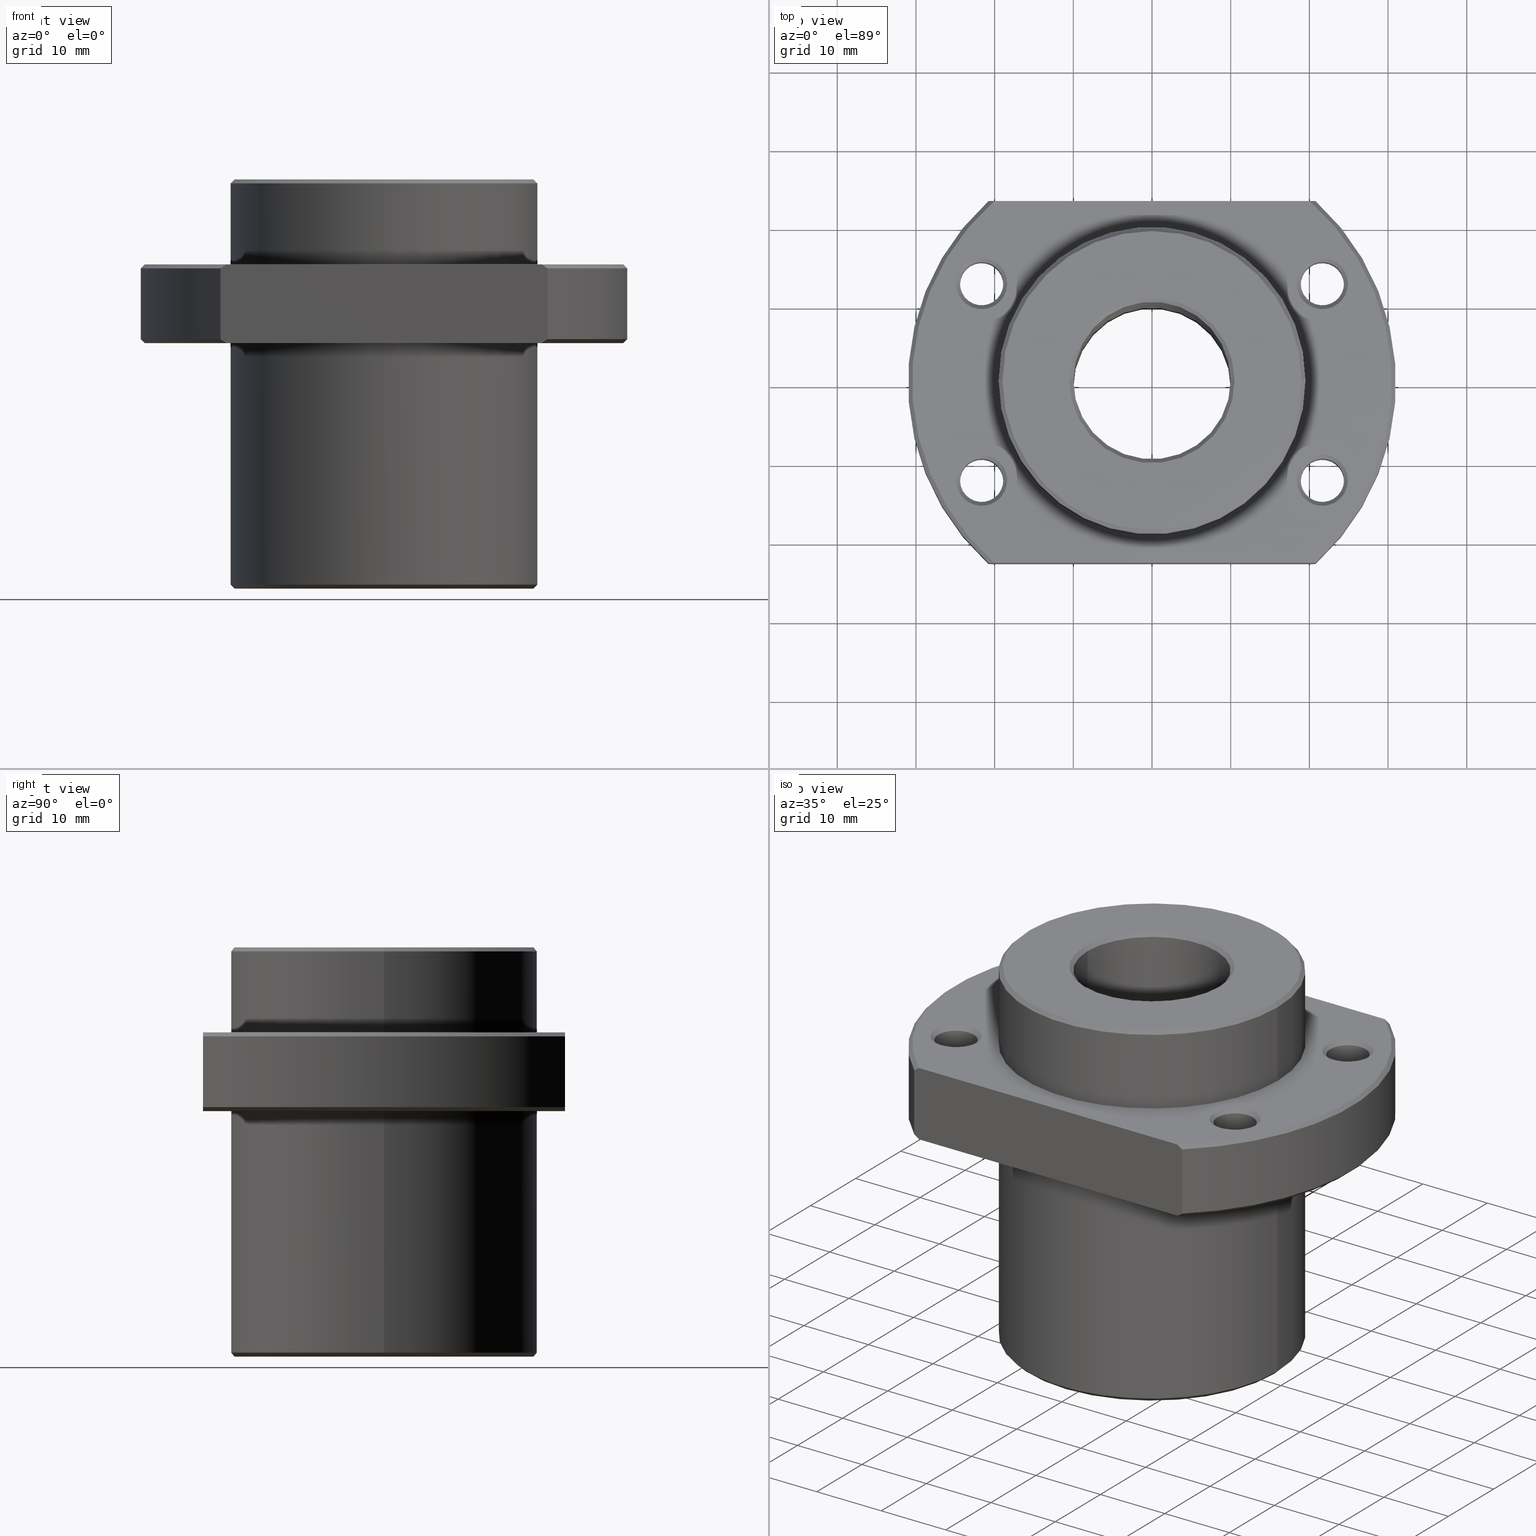
[diagram: canonical four-view strip — front | top / right | iso, engineering-drawing reading convention]
A machine part, canonical four-view strip (front | top / right | iso — engineering-drawing reading convention). The complete STEP part file that produces these views, byte-faithful:
ISO-10303-21;
HEADER;
FILE_DESCRIPTION(('CATIA V5 STEP Exchange'),'2;1');

FILE_NAME('C:\\Documents and Settings\\mycom\\\X2\BC14D0D5\X0\ \X2\D654BA74\X0\\\3D_CAD\\STEP\\SLK (STEP)\\2020 SLK\\2020 STK.stp','2006-12-14T07:25:43+00:00',('none'),('none'),'CATIA Version 5 Release 16 (IN-10)','CATIA V5 STEP AP214','none');

FILE_SCHEMA(('AUTOMOTIVE_DESIGN { 1 0 10303 214 1 1 1 1 }'));

ENDSEC;
/* file written by CATIA V5R16 */
DATA;
#5=PRODUCT('2020 STK','','',(#2)) ;
#2=PRODUCT_CONTEXT(' ',#1,'mechanical') ;
#1=APPLICATION_CONTEXT('automotive design') ;
#10=PRODUCT_DEFINITION(' ',' ',#6,#3) ;
#3=PRODUCT_DEFINITION_CONTEXT('part definition',#1,' ') ;
#11=PRODUCT_DEFINITION_SHAPE(' ',' ',#10) ;
#1393=MECHANICAL_DESIGN_GEOMETRIC_PRESENTATION_REPRESENTATION(' ',(#203,#227,#427,#446,#30),#17) ;
#20=SHAPE_REPRESENTATION(' ',(#19),#17) ;
#19=AXIS2_PLACEMENT_3D(' ',#18,$,$) ;
#35=AXIS2_PLACEMENT_3D('Cylinder Axis2P3D',#32,#33,#34) ;
#48=AXIS2_PLACEMENT_3D('Circle Axis2P3D',#46,#47,$) ;
#62=AXIS2_PLACEMENT_3D('Circle Axis2P3D',#60,#61,$) ;
#74=AXIS2_PLACEMENT_3D('Circle Axis2P3D',#72,#73,$) ;
#79=AXIS2_PLACEMENT_3D('Circle Axis2P3D',#77,#78,$) ;
#92=AXIS2_PLACEMENT_3D('Cone Axis2P3D',#89,#90,#91) ;
#103=AXIS2_PLACEMENT_3D('Circle Axis2P3D',#101,#102,$) ;
#123=AXIS2_PLACEMENT_3D('Cone Axis2P3D',#120,#121,#122) ;
#127=AXIS2_PLACEMENT_3D('Circle Axis2P3D',#125,#126,$) ;
#140=AXIS2_PLACEMENT_3D('Plane Axis2P3D',#137,#138,#139) ;
#148=AXIS2_PLACEMENT_3D('Circle Axis2P3D',#146,#147,$) ;
#157=AXIS2_PLACEMENT_3D('Circle Axis2P3D',#155,#156,$) ;
#168=AXIS2_PLACEMENT_3D('Cone Axis2P3D',#165,#166,#167) ;
#179=AXIS2_PLACEMENT_3D('Circle Axis2P3D',#177,#178,$) ;
#207=AXIS2_PLACEMENT_3D('Cone Axis2P3D',#204,#205,#206) ;
#211=AXIS2_PLACEMENT_3D('Circle Axis2P3D',#209,#210,$) ;
#239=AXIS2_PLACEMENT_3D('Circle Axis2P3D',#237,#238,$) ;
#253=AXIS2_PLACEMENT_3D('Circle Axis2P3D',#251,#252,$) ;
#265=AXIS2_PLACEMENT_3D('Circle Axis2P3D',#263,#264,$) ;
#270=AXIS2_PLACEMENT_3D('Circle Axis2P3D',#268,#269,$) ;
#283=AXIS2_PLACEMENT_3D('Cone Axis2P3D',#280,#281,#282) ;
#301=AXIS2_PLACEMENT_3D('Circle Axis2P3D',#299,#300,$) ;
#314=AXIS2_PLACEMENT_3D('Cone Axis2P3D',#311,#312,#313) ;
#318=AXIS2_PLACEMENT_3D('Circle Axis2P3D',#316,#317,$) ;
#331=AXIS2_PLACEMENT_3D('Cylinder Axis2P3D',#328,#329,#330) ;
#335=AXIS2_PLACEMENT_3D('Circle Axis2P3D',#333,#334,$) ;
#361=AXIS2_PLACEMENT_3D('Circle Axis2P3D',#359,#360,$) ;
#374=AXIS2_PLACEMENT_3D('Plane Axis2P3D',#371,#372,#373) ;
#382=AXIS2_PLACEMENT_3D('Circle Axis2P3D',#380,#381,$) ;
#391=AXIS2_PLACEMENT_3D('Circle Axis2P3D',#389,#390,$) ;
#402=AXIS2_PLACEMENT_3D('Cone Axis2P3D',#399,#400,#401) ;
#431=AXIS2_PLACEMENT_3D('Cone Axis2P3D',#428,#429,#430) ;
#450=AXIS2_PLACEMENT_3D('Cone Axis2P3D',#447,#448,#449) ;
#463=AXIS2_PLACEMENT_3D('Circle Axis2P3D',#461,#462,$) ;
#477=AXIS2_PLACEMENT_3D('Circle Axis2P3D',#475,#476,$) ;
#490=AXIS2_PLACEMENT_3D('Cone Axis2P3D',#487,#488,#489) ;
#494=AXIS2_PLACEMENT_3D('Circle Axis2P3D',#492,#493,$) ;
#499=AXIS2_PLACEMENT_3D('Circle Axis2P3D',#497,#498,$) ;
#512=AXIS2_PLACEMENT_3D('Cylinder Axis2P3D',#509,#510,#511) ;
#516=AXIS2_PLACEMENT_3D('Circle Axis2P3D',#514,#515,$) ;
#542=AXIS2_PLACEMENT_3D('Circle Axis2P3D',#540,#541,$) ;
#555=AXIS2_PLACEMENT_3D('Cone Axis2P3D',#552,#553,#554) ;
#566=AXIS2_PLACEMENT_3D('Circle Axis2P3D',#564,#565,$) ;
#586=AXIS2_PLACEMENT_3D('Cone Axis2P3D',#583,#584,#585) ;
#590=AXIS2_PLACEMENT_3D('Circle Axis2P3D',#588,#589,$) ;
#603=AXIS2_PLACEMENT_3D('Cone Axis2P3D',#600,#601,#602) ;
#616=AXIS2_PLACEMENT_3D('Circle Axis2P3D',#614,#615,$) ;
#630=AXIS2_PLACEMENT_3D('Circle Axis2P3D',#628,#629,$) ;
#643=AXIS2_PLACEMENT_3D('Cone Axis2P3D',#640,#641,#642) ;
#647=AXIS2_PLACEMENT_3D('Circle Axis2P3D',#645,#646,$) ;
#652=AXIS2_PLACEMENT_3D('Circle Axis2P3D',#650,#651,$) ;
#665=AXIS2_PLACEMENT_3D('Cylinder Axis2P3D',#662,#663,#664) ;
#669=AXIS2_PLACEMENT_3D('Circle Axis2P3D',#667,#668,$) ;
#695=AXIS2_PLACEMENT_3D('Circle Axis2P3D',#693,#694,$) ;
#708=AXIS2_PLACEMENT_3D('Cone Axis2P3D',#705,#706,#707) ;
#719=AXIS2_PLACEMENT_3D('Circle Axis2P3D',#717,#718,$) ;
#739=AXIS2_PLACEMENT_3D('Cone Axis2P3D',#736,#737,#738) ;
#743=AXIS2_PLACEMENT_3D('Circle Axis2P3D',#741,#742,$) ;
#756=AXIS2_PLACEMENT_3D('Cone Axis2P3D',#753,#754,#755) ;
#769=AXIS2_PLACEMENT_3D('Circle Axis2P3D',#767,#768,$) ;
#783=AXIS2_PLACEMENT_3D('Circle Axis2P3D',#781,#782,$) ;
#796=AXIS2_PLACEMENT_3D('Cone Axis2P3D',#793,#794,#795) ;
#800=AXIS2_PLACEMENT_3D('Circle Axis2P3D',#798,#799,$) ;
#805=AXIS2_PLACEMENT_3D('Circle Axis2P3D',#803,#804,$) ;
#818=AXIS2_PLACEMENT_3D('Cylinder Axis2P3D',#815,#816,#817) ;
#822=AXIS2_PLACEMENT_3D('Circle Axis2P3D',#820,#821,$) ;
#848=AXIS2_PLACEMENT_3D('Circle Axis2P3D',#846,#847,$) ;
#861=AXIS2_PLACEMENT_3D('Cone Axis2P3D',#858,#859,#860) ;
#872=AXIS2_PLACEMENT_3D('Circle Axis2P3D',#870,#871,$) ;
#892=AXIS2_PLACEMENT_3D('Cone Axis2P3D',#889,#890,#891) ;
#896=AXIS2_PLACEMENT_3D('Circle Axis2P3D',#894,#895,$) ;
#909=AXIS2_PLACEMENT_3D('Cone Axis2P3D',#906,#907,#908) ;
#922=AXIS2_PLACEMENT_3D('Circle Axis2P3D',#920,#921,$) ;
#936=AXIS2_PLACEMENT_3D('Circle Axis2P3D',#934,#935,$) ;
#949=AXIS2_PLACEMENT_3D('Cone Axis2P3D',#946,#947,#948) ;
#953=AXIS2_PLACEMENT_3D('Circle Axis2P3D',#951,#952,$) ;
#958=AXIS2_PLACEMENT_3D('Circle Axis2P3D',#956,#957,$) ;
#971=AXIS2_PLACEMENT_3D('Cylinder Axis2P3D',#968,#969,#970) ;
#975=AXIS2_PLACEMENT_3D('Circle Axis2P3D',#973,#974,$) ;
#1001=AXIS2_PLACEMENT_3D('Circle Axis2P3D',#999,#1000,$) ;
#1014=AXIS2_PLACEMENT_3D('Cone Axis2P3D',#1011,#1012,#1013) ;
#1025=AXIS2_PLACEMENT_3D('Circle Axis2P3D',#1023,#1024,$) ;
#1045=AXIS2_PLACEMENT_3D('Cone Axis2P3D',#1042,#1043,#1044) ;
#1049=AXIS2_PLACEMENT_3D('Circle Axis2P3D',#1047,#1048,$) ;
#1062=AXIS2_PLACEMENT_3D('Cone Axis2P3D',#1059,#1060,#1061) ;
#1066=AXIS2_PLACEMENT_3D('Circle Axis2P3D',#1064,#1065,$) ;
#1083=AXIS2_PLACEMENT_3D('Circle Axis2P3D',#1081,#1082,$) ;
#1104=AXIS2_PLACEMENT_3D('Cylinder Axis2P3D',#1101,#1102,#1103) ;
#1122=AXIS2_PLACEMENT_3D('Circle Axis2P3D',#1120,#1121,$) ;
#1135=AXIS2_PLACEMENT_3D('Cone Axis2P3D',#1132,#1133,#1134) ;
#1155=AXIS2_PLACEMENT_3D('Circle Axis2P3D',#1153,#1154,$) ;
#1168=AXIS2_PLACEMENT_3D('Plane Axis2P3D',#1165,#1166,#1167) ;
#1172=AXIS2_PLACEMENT_3D('Circle Axis2P3D',#1170,#1171,$) ;
#1219=AXIS2_PLACEMENT_3D('Cone Axis2P3D',#1216,#1217,#1218) ;
#1231=AXIS2_PLACEMENT_3D('Circle Axis2P3D',#1229,#1230,$) ;
#1252=AXIS2_PLACEMENT_3D('Plane Axis2P3D',#1249,#1250,#1251) ;
#1270=AXIS2_PLACEMENT_3D('Circle Axis2P3D',#1268,#1269,$) ;
#1303=AXIS2_PLACEMENT_3D('Cylinder Axis2P3D',#1300,#1301,#1302) ;
#1321=AXIS2_PLACEMENT_3D('Circle Axis2P3D',#1319,#1320,$) ;
#1334=AXIS2_PLACEMENT_3D('Plane Axis2P3D',#1331,#1332,#1333) ;
#1358=AXIS2_PLACEMENT_3D('Plane Axis2P3D',#1355,#1356,#1357) ;
#1382=AXIS2_PLACEMENT_3D('Cone Axis2P3D',#1379,#1380,#1381) ;
#18=CARTESIAN_POINT(' ',(0.,0.,0.)) ;
#32=CARTESIAN_POINT('Axis2P3D Location',(0.,0.,26.)) ;
#37=CARTESIAN_POINT('Line Origine',(-19.5,2.38798238995E-015,26.)) ;
#41=CARTESIAN_POINT('Vertex',(-19.5,2.38798238995E-015,0.5)) ;
#43=CARTESIAN_POINT('Vertex',(-19.5,2.38798238995E-015,31.2)) ;
#46=CARTESIAN_POINT('Axis2P3D Location',(0.,0.,31.2)) ;
#50=CARTESIAN_POINT('Vertex',(19.5,0.,31.2)) ;
#53=CARTESIAN_POINT('Line Origine',(19.5,0.,26.)) ;
#57=CARTESIAN_POINT('Vertex',(19.5,-4.77596477991E-015,0.5)) ;
#60=CARTESIAN_POINT('Axis2P3D Location',(0.,0.,0.5)) ;
#72=CARTESIAN_POINT('Axis2P3D Location',(0.,0.,31.2)) ;
#77=CARTESIAN_POINT('Axis2P3D Location',(0.,0.,0.5)) ;
#89=CARTESIAN_POINT('Axis2P3D Location',(1.88293824976E-013,-2.73558953268E-013,-19.)) ;
#94=CARTESIAN_POINT('Line Origine',(19.25,4.81041102419E-015,0.25)) ;
#98=CARTESIAN_POINT('Vertex',(19.,-2.03965601461E-014,0.)) ;
#101=CARTESIAN_POINT('Axis2P3D Location',(2.6645352591E-015,-3.5527136788E-015,-1.84741111298E-013)) ;
#105=CARTESIAN_POINT('Vertex',(-19.,3.84417106254E-007,0.)) ;
#108=CARTESIAN_POINT('Line Origine',(-19.25,3.89475230201E-007,0.25)) ;
#120=CARTESIAN_POINT('Axis2P3D Location',(2.0605739337E-013,1.38555833473E-013,-19.)) ;
#125=CARTESIAN_POINT('Axis2P3D Location',(3.5527136788E-015,3.5527136788E-015,1.03028696685E-013)) ;
#137=CARTESIAN_POINT('Axis2P3D Location',(0.,0.,0.)) ;
#146=CARTESIAN_POINT('Axis2P3D Location',(1.7763568394E-015,-1.11022302463E-015,0.)) ;
#150=CARTESIAN_POINT('Vertex',(-10.5,4.68837645993E-007,0.)) ;
#152=CARTESIAN_POINT('Vertex',(10.5,-3.68189636765E-015,0.)) ;
#155=CARTESIAN_POINT('Axis2P3D Location',(-3.5527136788E-015,-2.6645352591E-015,0.)) ;
#165=CARTESIAN_POINT('Axis2P3D Location',(-4.61852778244E-014,-7.28306304154E-014,10.5)) ;
#170=CARTESIAN_POINT('Line Origine',(-10.25,-2.6645352591E-015,0.25)) ;
#174=CARTESIAN_POINT('Vertex',(-10.,1.22460635382E-015,0.5)) ;
#177=CARTESIAN_POINT('Axis2P3D Location',(-1.7763568394E-015,-1.7763568394E-015,0.5)) ;
#181=CARTESIAN_POINT('Vertex',(10.,-2.44921270764E-015,0.5)) ;
#184=CARTESIAN_POINT('Line Origine',(10.25,-2.22044604925E-016,0.25)) ;
#204=CARTESIAN_POINT('Axis2P3D Location',(-2.70894418009E-014,-7.46069872548E-014,10.5)) ;
#209=CARTESIAN_POINT('Axis2P3D Location',(-4.4408920985E-016,-3.5527136788E-015,0.5)) ;
#228=CARTESIAN_POINT('Line Origine',(19.5,0.,26.)) ;
#232=CARTESIAN_POINT('Vertex',(19.5,0.,41.2)) ;
#234=CARTESIAN_POINT('Vertex',(19.5,-4.77596477991E-015,51.5)) ;
#237=CARTESIAN_POINT('Axis2P3D Location',(0.,0.,41.2)) ;
#241=CARTESIAN_POINT('Vertex',(-19.5,2.38798238995E-015,41.2)) ;
#244=CARTESIAN_POINT('Line Origine',(-19.5,2.38798238995E-015,26.)) ;
#248=CARTESIAN_POINT('Vertex',(-19.5,2.38798238995E-015,51.5)) ;
#251=CARTESIAN_POINT('Axis2P3D Location',(0.,0.,51.5)) ;
#263=CARTESIAN_POINT('Axis2P3D Location',(0.,0.,41.2)) ;
#268=CARTESIAN_POINT('Axis2P3D Location',(0.,0.,51.5)) ;
#280=CARTESIAN_POINT('Axis2P3D Location',(1.88293824976E-013,-2.73558953268E-013,71.)) ;
#285=CARTESIAN_POINT('Line Origine',(19.25,-3.50716606754E-015,51.75)) ;
#289=CARTESIAN_POINT('Vertex',(19.,-2.03965601461E-014,52.)) ;
#292=CARTESIAN_POINT('Line Origine',(-19.25,4.68584968309E-015,51.75)) ;
#296=CARTESIAN_POINT('Vertex',(-19.,3.84417106254E-007,52.)) ;
#299=CARTESIAN_POINT('Axis2P3D Location',(2.6645352591E-015,-3.5527136788E-015,52.)) ;
#311=CARTESIAN_POINT('Axis2P3D Location',(2.0605739337E-013,1.38555833473E-013,71.)) ;
#316=CARTESIAN_POINT('Axis2P3D Location',(3.5527136788E-015,3.5527136788E-015,52.)) ;
#328=CARTESIAN_POINT('Axis2P3D Location',(0.,0.,26.)) ;
#333=CARTESIAN_POINT('Axis2P3D Location',(0.,0.,51.5)) ;
#337=CARTESIAN_POINT('Vertex',(10.,-2.44921270764E-015,51.5)) ;
#339=CARTESIAN_POINT('Vertex',(-10.,1.22460635382E-015,51.5)) ;
#342=CARTESIAN_POINT('Line Origine',(-10.,1.22460635382E-015,41.6)) ;
#347=CARTESIAN_POINT('Line Origine',(10.,0.,41.6)) ;
#359=CARTESIAN_POINT('Axis2P3D Location',(0.,0.,51.5)) ;
#371=CARTESIAN_POINT('Axis2P3D Location',(0.,0.,52.)) ;
#380=CARTESIAN_POINT('Axis2P3D Location',(-3.5527136788E-015,-2.6645352591E-015,52.)) ;
#384=CARTESIAN_POINT('Vertex',(10.5,-3.68189636765E-015,52.)) ;
#386=CARTESIAN_POINT('Vertex',(-10.5,4.68837645993E-007,52.)) ;
#389=CARTESIAN_POINT('Axis2P3D Location',(1.7763568394E-015,-1.11022302463E-015,52.)) ;
#399=CARTESIAN_POINT('Axis2P3D Location',(-4.61852778244E-014,-7.28306304154E-014,41.5)) ;
#404=CARTESIAN_POINT('Line Origine',(-10.25,-4.18778781652E-007,51.75)) ;
#409=CARTESIAN_POINT('Line Origine',(10.25,-8.881784197E-015,51.75)) ;
#428=CARTESIAN_POINT('Axis2P3D Location',(-2.70894418009E-014,-7.46069872548E-014,41.5)) ;
#447=CARTESIAN_POINT('Axis2P3D Location',(-21.6506350946,12.5,34.45)) ;
#452=CARTESIAN_POINT('Line Origine',(-24.248711306,14.,31.45)) ;
#456=CARTESIAN_POINT('Vertex',(-24.4652176485,14.1250000146,31.2)) ;
#458=CARTESIAN_POINT('Vertex',(-24.032204955,13.875,31.7)) ;
#461=CARTESIAN_POINT('Axis2P3D Location',(-21.6506350946,12.5,31.7)) ;
#465=CARTESIAN_POINT('Vertex',(-19.2690652342,11.125,31.7)) ;
#468=CARTESIAN_POINT('Line Origine',(-19.0525588833,11.,31.45)) ;
#472=CARTESIAN_POINT('Vertex',(-18.8360525323,10.875,31.2)) ;
#475=CARTESIAN_POINT('Axis2P3D Location',(-21.6506350946,12.5,31.2)) ;
#487=CARTESIAN_POINT('Axis2P3D Location',(-21.6506350946,12.5,34.45)) ;
#492=CARTESIAN_POINT('Axis2P3D Location',(-21.6506350946,12.5,31.7)) ;
#497=CARTESIAN_POINT('Axis2P3D Location',(-21.6506350946,12.5,31.2)) ;
#509=CARTESIAN_POINT('Axis2P3D Location',(-21.6506350946,12.5,36.2)) ;
#514=CARTESIAN_POINT('Axis2P3D Location',(-21.6506350946,12.5,40.7)) ;
#518=CARTESIAN_POINT('Vertex',(-24.032204955,13.875,40.7)) ;
#520=CARTESIAN_POINT('Vertex',(-19.2690652342,11.125,40.7)) ;
#523=CARTESIAN_POINT('Line Origine',(-19.2690652342,11.125,36.2)) ;
#528=CARTESIAN_POINT('Line Origine',(-24.032204955,13.875,36.2)) ;
#540=CARTESIAN_POINT('Axis2P3D Location',(-21.6506350946,12.5,40.7)) ;
#552=CARTESIAN_POINT('Axis2P3D Location',(-21.6506350946,12.5,37.95)) ;
#557=CARTESIAN_POINT('Line Origine',(-24.2487114677,13.9999997198,40.95)) ;
#561=CARTESIAN_POINT('Vertex',(-24.4652176485,14.1250000146,41.2)) ;
#564=CARTESIAN_POINT('Axis2P3D Location',(-21.6506350946,12.5,41.2)) ;
#568=CARTESIAN_POINT('Vertex',(-18.8360525323,10.875,41.2)) ;
#571=CARTESIAN_POINT('Line Origine',(-19.0525588833,11.,40.95)) ;
#583=CARTESIAN_POINT('Axis2P3D Location',(-21.6506350946,12.5,37.95)) ;
#588=CARTESIAN_POINT('Axis2P3D Location',(-21.6506350946,12.5,41.2)) ;
#600=CARTESIAN_POINT('Axis2P3D Location',(-21.6506350946,-12.5,34.45)) ;
#605=CARTESIAN_POINT('Line Origine',(-24.248711306,-14.,31.45)) ;
#609=CARTESIAN_POINT('Vertex',(-24.4652176654,-14.1249999854,31.2)) ;
#611=CARTESIAN_POINT('Vertex',(-24.032204955,-13.875,31.7)) ;
#614=CARTESIAN_POINT('Axis2P3D Location',(-21.6506350946,-12.5,31.7)) ;
#618=CARTESIAN_POINT('Vertex',(-19.2690652342,-11.125,31.7)) ;
#621=CARTESIAN_POINT('Line Origine',(-19.0525588833,-11.,31.45)) ;
#625=CARTESIAN_POINT('Vertex',(-18.8360525323,-10.875,31.2)) ;
#628=CARTESIAN_POINT('Axis2P3D Location',(-21.6506350946,-12.5,31.2)) ;
#640=CARTESIAN_POINT('Axis2P3D Location',(-21.6506350946,-12.5,34.45)) ;
#645=CARTESIAN_POINT('Axis2P3D Location',(-21.6506350946,-12.5,31.7)) ;
#650=CARTESIAN_POINT('Axis2P3D Location',(-21.6506350946,-12.5,31.2)) ;
#662=CARTESIAN_POINT('Axis2P3D Location',(-21.6506350946,-12.5,36.2)) ;
#667=CARTESIAN_POINT('Axis2P3D Location',(-21.6506350946,-12.5,40.7)) ;
#671=CARTESIAN_POINT('Vertex',(-24.032204955,-13.875,40.7)) ;
#673=CARTESIAN_POINT('Vertex',(-19.2690652342,-11.125,40.7)) ;
#676=CARTESIAN_POINT('Line Origine',(-19.2690652342,-11.125,36.2)) ;
#681=CARTESIAN_POINT('Line Origine',(-24.032204955,-13.875,36.2)) ;
#693=CARTESIAN_POINT('Axis2P3D Location',(-21.6506350946,-12.5,40.7)) ;
#705=CARTESIAN_POINT('Axis2P3D Location',(-21.6506350946,-12.5,37.95)) ;
#710=CARTESIAN_POINT('Line Origine',(-24.2487111442,-14.0000002802,40.95)) ;
#714=CARTESIAN_POINT('Vertex',(-24.4652176654,-14.1249999854,41.2)) ;
#717=CARTESIAN_POINT('Axis2P3D Location',(-21.6506350946,-12.5,41.2)) ;
#721=CARTESIAN_POINT('Vertex',(-18.8360525323,-10.875,41.2)) ;
#724=CARTESIAN_POINT('Line Origine',(-19.0525588833,-11.,40.95)) ;
#736=CARTESIAN_POINT('Axis2P3D Location',(-21.6506350946,-12.5,37.95)) ;
#741=CARTESIAN_POINT('Axis2P3D Location',(-21.6506350946,-12.5,41.2)) ;
#753=CARTESIAN_POINT('Axis2P3D Location',(21.6506350946,-12.5,34.45)) ;
#758=CARTESIAN_POINT('Line Origine',(24.248711306,-14.,31.45)) ;
#762=CARTESIAN_POINT('Vertex',(24.4652176485,-14.1250000146,31.2)) ;
#764=CARTESIAN_POINT('Vertex',(24.032204955,-13.875,31.7)) ;
#767=CARTESIAN_POINT('Axis2P3D Location',(21.6506350946,-12.5,31.7)) ;
#771=CARTESIAN_POINT('Vertex',(19.2690652342,-11.125,31.7)) ;
#774=CARTESIAN_POINT('Line Origine',(19.0525588833,-11.,31.45)) ;
#778=CARTESIAN_POINT('Vertex',(18.8360525323,-10.875,31.2)) ;
#781=CARTESIAN_POINT('Axis2P3D Location',(21.6506350946,-12.5,31.2)) ;
#793=CARTESIAN_POINT('Axis2P3D Location',(21.6506350946,-12.5,34.45)) ;
#798=CARTESIAN_POINT('Axis2P3D Location',(21.6506350946,-12.5,31.7)) ;
#803=CARTESIAN_POINT('Axis2P3D Location',(21.6506350946,-12.5,31.2)) ;
#815=CARTESIAN_POINT('Axis2P3D Location',(21.6506350946,-12.5,36.2)) ;
#820=CARTESIAN_POINT('Axis2P3D Location',(21.6506350946,-12.5,40.7)) ;
#824=CARTESIAN_POINT('Vertex',(24.032204955,-13.875,40.7)) ;
#826=CARTESIAN_POINT('Vertex',(19.2690652342,-11.125,40.7)) ;
#829=CARTESIAN_POINT('Line Origine',(19.2690652342,-11.125,36.2)) ;
#834=CARTESIAN_POINT('Line Origine',(24.032204955,-13.875,36.2)) ;
#846=CARTESIAN_POINT('Axis2P3D Location',(21.6506350946,-12.5,40.7)) ;
#858=CARTESIAN_POINT('Axis2P3D Location',(21.6506350946,-12.5,37.95)) ;
#863=CARTESIAN_POINT('Line Origine',(24.2487114677,-13.9999997198,40.95)) ;
#867=CARTESIAN_POINT('Vertex',(24.4652176485,-14.1250000146,41.2)) ;
#870=CARTESIAN_POINT('Axis2P3D Location',(21.6506350946,-12.5,41.2)) ;
#874=CARTESIAN_POINT('Vertex',(18.8360525323,-10.875,41.2)) ;
#877=CARTESIAN_POINT('Line Origine',(19.0525588833,-11.,40.95)) ;
#889=CARTESIAN_POINT('Axis2P3D Location',(21.6506350946,-12.5,37.95)) ;
#894=CARTESIAN_POINT('Axis2P3D Location',(21.6506350946,-12.5,41.2)) ;
#906=CARTESIAN_POINT('Axis2P3D Location',(21.6506350946,12.5,34.45)) ;
#911=CARTESIAN_POINT('Line Origine',(24.248711306,14.,31.45)) ;
#915=CARTESIAN_POINT('Vertex',(24.4652176654,14.1249999854,31.2)) ;
#917=CARTESIAN_POINT('Vertex',(24.032204955,13.875,31.7)) ;
#920=CARTESIAN_POINT('Axis2P3D Location',(21.6506350946,12.5,31.7)) ;
#924=CARTESIAN_POINT('Vertex',(19.2690652342,11.125,31.7)) ;
#927=CARTESIAN_POINT('Line Origine',(19.0525588833,11.,31.45)) ;
#931=CARTESIAN_POINT('Vertex',(18.8360525323,10.875,31.2)) ;
#934=CARTESIAN_POINT('Axis2P3D Location',(21.6506350946,12.5,31.2)) ;
#946=CARTESIAN_POINT('Axis2P3D Location',(21.6506350946,12.5,34.45)) ;
#951=CARTESIAN_POINT('Axis2P3D Location',(21.6506350946,12.5,31.7)) ;
#956=CARTESIAN_POINT('Axis2P3D Location',(21.6506350946,12.5,31.2)) ;
#968=CARTESIAN_POINT('Axis2P3D Location',(21.6506350946,12.5,36.2)) ;
#973=CARTESIAN_POINT('Axis2P3D Location',(21.6506350946,12.5,40.7)) ;
#977=CARTESIAN_POINT('Vertex',(24.032204955,13.875,40.7)) ;
#979=CARTESIAN_POINT('Vertex',(19.2690652342,11.125,40.7)) ;
#982=CARTESIAN_POINT('Line Origine',(19.2690652342,11.125,36.2)) ;
#987=CARTESIAN_POINT('Line Origine',(24.032204955,13.875,36.2)) ;
#999=CARTESIAN_POINT('Axis2P3D Location',(21.6506350946,12.5,40.7)) ;
#1011=CARTESIAN_POINT('Axis2P3D Location',(21.6506350946,12.5,37.95)) ;
#1016=CARTESIAN_POINT('Line Origine',(24.2487111442,14.0000002802,40.95)) ;
#1020=CARTESIAN_POINT('Vertex',(24.4652176654,14.1249999854,41.2)) ;
#1023=CARTESIAN_POINT('Axis2P3D Location',(21.6506350946,12.5,41.2)) ;
#1027=CARTESIAN_POINT('Vertex',(18.8360525323,10.875,41.2)) ;
#1030=CARTESIAN_POINT('Line Origine',(19.0525588833,11.,40.95)) ;
#1042=CARTESIAN_POINT('Axis2P3D Location',(21.6506350946,12.5,37.95)) ;
#1047=CARTESIAN_POINT('Axis2P3D Location',(21.6506350946,12.5,41.2)) ;
#1059=CARTESIAN_POINT('Axis2P3D Location',(-6.57252030578E-013,-1.48296036724E-013,71.7)) ;
#1064=CARTESIAN_POINT('Axis2P3D Location',(-7.10542735761E-015,7.4408398438E-016,41.2)) ;
#1068=CARTESIAN_POINT('Vertex',(20.031225624,-23.,41.2)) ;
#1070=CARTESIAN_POINT('Vertex',(20.031225624,23.,41.2)) ;
#1074=CARTESIAN_POINT('Control Point',(20.7846096908,-23.,40.7)) ;
#1075=CARTESIAN_POINT('Control Point',(20.5309634757,-23.,40.8700625026)) ;
#1076=CARTESIAN_POINT('Control Point',(20.2798384372,-22.9999998625,41.0367207793)) ;
#1077=CARTESIAN_POINT('Control Point',(20.0312257819,-22.9999998625,41.2)) ;
#1078=CARTESIAN_POINT('Vertex',(20.7846096908,-23.,40.7)) ;
#1081=CARTESIAN_POINT('Axis2P3D Location',(3.55271367879E-015,3.18736465172E-015,40.7)) ;
#1085=CARTESIAN_POINT('Vertex',(20.7846096908,23.,40.7)) ;
#1089=CARTESIAN_POINT('Control Point',(20.7846096908,23.,40.7)) ;
#1090=CARTESIAN_POINT('Control Point',(20.5309632927,23.,40.8700626253)) ;
#1091=CARTESIAN_POINT('Control Point',(20.2798381911,23.0000002312,41.0367206664)) ;
#1092=CARTESIAN_POINT('Control Point',(20.0312253586,23.0000002312,41.2)) ;
#1101=CARTESIAN_POINT('Axis2P3D Location',(0.,0.,36.2)) ;
#1106=CARTESIAN_POINT('Line Origine',(20.7846096908,23.,36.2)) ;
#1110=CARTESIAN_POINT('Vertex',(20.7846096908,23.,31.7)) ;
#1113=CARTESIAN_POINT('Line Origine',(20.7846096908,-23.,36.2)) ;
#1117=CARTESIAN_POINT('Vertex',(20.7846096908,-23.,31.7)) ;
#1120=CARTESIAN_POINT('Axis2P3D Location',(0.,0.,31.7)) ;
#1132=CARTESIAN_POINT('Axis2P3D Location',(-6.57252030578E-013,-1.48296036724E-013,0.7)) ;
#1138=CARTESIAN_POINT('Control Point',(20.7846099551,22.9999997612,31.7)) ;
#1139=CARTESIAN_POINT('Control Point',(20.5309635562,22.9999997612,31.529937372)) ;
#1140=CARTESIAN_POINT('Control Point',(20.2798384574,23.,31.3632793363)) ;
#1141=CARTESIAN_POINT('Control Point',(20.031225624,23.,31.2)) ;
#1142=CARTESIAN_POINT('Vertex',(20.031225624,23.,31.2)) ;
#1146=CARTESIAN_POINT('Control Point',(20.7846095318,-23.0000001437,31.7)) ;
#1147=CARTESIAN_POINT('Control Point',(20.530963318,-23.0000001437,31.5299374996)) ;
#1148=CARTESIAN_POINT('Control Point',(20.2798382781,-23.,31.3632792186)) ;
#1149=CARTESIAN_POINT('Control Point',(20.031225624,-23.,31.2)) ;
#1150=CARTESIAN_POINT('Vertex',(20.031225624,-23.,31.2)) ;
#1153=CARTESIAN_POINT('Axis2P3D Location',(-7.10542735761E-015,7.44083984381E-016,31.2)) ;
#1165=CARTESIAN_POINT('Axis2P3D Location',(0.,0.,31.2)) ;
#1170=CARTESIAN_POINT('Axis2P3D Location',(0.,-3.2528167469E-015,31.2)) ;
#1174=CARTESIAN_POINT('Vertex',(-20.031225624,23.,31.2)) ;
#1176=CARTESIAN_POINT('Vertex',(-20.031225624,-23.,31.2)) ;
#1179=CARTESIAN_POINT('Line Origine',(7.1054273576E-015,23.,31.2)) ;
#1184=CARTESIAN_POINT('Line Origine',(0.,-23.,31.2)) ;
#1216=CARTESIAN_POINT('Axis2P3D Location',(-2.20268248086E-013,-2.76871265609E-013,0.7)) ;
#1222=CARTESIAN_POINT('Control Point',(-20.7846099551,-22.9999997612,31.7)) ;
#1223=CARTESIAN_POINT('Control Point',(-20.5309635562,-22.9999997612,31.529937372)) ;
#1224=CARTESIAN_POINT('Control Point',(-20.2798384574,-23.,31.3632793363)) ;
#1225=CARTESIAN_POINT('Control Point',(-20.031225624,-23.,31.2)) ;
#1226=CARTESIAN_POINT('Vertex',(-20.7846096908,-23.,31.7)) ;
#1229=CARTESIAN_POINT('Axis2P3D Location',(2.39813715187E-027,3.67449668783E-015,31.7)) ;
#1233=CARTESIAN_POINT('Vertex',(-20.7846096908,23.,31.7)) ;
#1237=CARTESIAN_POINT('Control Point',(-20.7846095318,23.0000001437,31.7)) ;
#1238=CARTESIAN_POINT('Control Point',(-20.530963318,23.0000001437,31.5299374996)) ;
#1239=CARTESIAN_POINT('Control Point',(-20.2798382781,23.,31.3632792186)) ;
#1240=CARTESIAN_POINT('Control Point',(-20.031225624,23.,31.2)) ;
#1249=CARTESIAN_POINT('Axis2P3D Location',(0.,0.,41.2)) ;
#1254=CARTESIAN_POINT('Line Origine',(0.,-23.,41.2)) ;
#1258=CARTESIAN_POINT('Vertex',(-20.031225624,-23.,41.2)) ;
#1261=CARTESIAN_POINT('Line Origine',(7.1054273576E-015,23.,41.2)) ;
#1265=CARTESIAN_POINT('Vertex',(-20.031225624,23.,41.2)) ;
#1268=CARTESIAN_POINT('Axis2P3D Location',(0.,-3.2528167469E-015,41.2)) ;
#1300=CARTESIAN_POINT('Axis2P3D Location',(0.,0.,36.2)) ;
#1305=CARTESIAN_POINT('Line Origine',(-20.7846096908,23.,36.2)) ;
#1309=CARTESIAN_POINT('Vertex',(-20.7846096908,23.,40.7)) ;
#1312=CARTESIAN_POINT('Line Origine',(-20.7846096908,-23.,36.2)) ;
#1316=CARTESIAN_POINT('Vertex',(-20.7846096908,-23.,40.7)) ;
#1319=CARTESIAN_POINT('Axis2P3D Location',(0.,0.,40.7)) ;
#1331=CARTESIAN_POINT('Axis2P3D Location',(-20.7846096908,23.,31.2)) ;
#1337=CARTESIAN_POINT('Control Point',(-20.7846096908,23.,40.7)) ;
#1338=CARTESIAN_POINT('Control Point',(-20.6324219617,23.,40.8020375016)) ;
#1339=CARTESIAN_POINT('Control Point',(-20.4809943697,23.,40.9030512625)) ;
#1340=CARTESIAN_POINT('Control Point',(-20.3303102597,23.,41.0030541462)) ;
#1341=CARTESIAN_POINT('Control Point',(-20.1803932172,23.,41.1020324676)) ;
#1342=CARTESIAN_POINT('Control Point',(-20.031225624,23.,41.2)) ;
#1355=CARTESIAN_POINT('Axis2P3D Location',(-20.7846096908,-23.,31.2)) ;
#1361=CARTESIAN_POINT('Control Point',(-20.7846096908,-23.,40.7)) ;
#1362=CARTESIAN_POINT('Control Point',(-20.632421852,-23.,40.8020375752)) ;
#1363=CARTESIAN_POINT('Control Point',(-20.4809941513,-23.,40.9030514082)) ;
#1364=CARTESIAN_POINT('Control Point',(-20.3303104734,-23.,41.0030540092)) ;
#1365=CARTESIAN_POINT('Control Point',(-20.1803933235,-23.,41.1020323998)) ;
#1366=CARTESIAN_POINT('Control Point',(-20.031225624,-23.,41.2)) ;
#1379=CARTESIAN_POINT('Axis2P3D Location',(-2.20268248086E-013,-2.76871265609E-013,71.7)) ;
#33=DIRECTION('Axis2P3D Direction',(0.,0.,1.)) ;
#34=DIRECTION('Axis2P3D XDirection',(1.,0.,0.)) ;
#38=DIRECTION('Vector Direction',(0.,0.,1.)) ;
#47=DIRECTION('Axis2P3D Direction',(0.,0.,1.)) ;
#54=DIRECTION('Vector Direction',(0.,0.,1.)) ;
#61=DIRECTION('Axis2P3D Direction',(0.,0.,1.)) ;
#73=DIRECTION('Axis2P3D Direction',(0.,0.,1.)) ;
#78=DIRECTION('Axis2P3D Direction',(0.,0.,1.)) ;
#90=DIRECTION('Axis2P3D Direction',(-9.7699626167E-015,1.42108547152E-014,1.)) ;
#91=DIRECTION('Axis2P3D XDirection',(1.,-1.20960127375E-016,9.74645871814E-015)) ;
#95=DIRECTION('Vector Direction',(0.707106781187,1.02252916969E-014,0.707106781187)) ;
#102=DIRECTION('Axis2P3D Direction',(1.71894679647E-030,1.42108547152E-014,1.)) ;
#109=DIRECTION('Vector Direction',(-0.707106781187,1.43065334969E-008,0.707106781187)) ;
#121=DIRECTION('Axis2P3D Direction',(-1.06581410364E-014,-7.1054273576E-015,1.)) ;
#122=DIRECTION('Axis2P3D XDirection',(-0.862227157058,0.506521795811,-5.66348276865E-015)) ;
#126=DIRECTION('Axis2P3D Direction',(-5.8377007579E-015,-9.93723107252E-015,1.)) ;
#138=DIRECTION('Axis2P3D Direction',(0.,0.,1.)) ;
#139=DIRECTION('Axis2P3D XDirection',(1.,0.,0.)) ;
#147=DIRECTION('Axis2P3D Direction',(0.,0.,1.)) ;
#156=DIRECTION('Axis2P3D Direction',(0.,0.,1.)) ;
#166=DIRECTION('Axis2P3D Direction',(4.4408920985E-015,7.1054273576E-015,-1.)) ;
#167=DIRECTION('Axis2P3D XDirection',(-0.906852365098,0.421448440401,-1.05367121277E-015)) ;
#171=DIRECTION('Vector Direction',(-0.707106781187,5.02429586779E-015,-0.707106781187)) ;
#178=DIRECTION('Axis2P3D Direction',(-3.50441991793E-015,-7.54064124155E-015,1.)) ;
#185=DIRECTION('Vector Direction',(0.707106781187,3.14018491737E-015,-0.707106781187)) ;
#205=DIRECTION('Axis2P3D Direction',(2.6645352591E-015,7.1054273576E-015,-1.)) ;
#206=DIRECTION('Axis2P3D XDirection',(1.,5.83145882772E-017,2.63417803193E-015)) ;
#210=DIRECTION('Axis2P3D Direction',(4.14350070892E-031,-7.1054273576E-015,1.)) ;
#229=DIRECTION('Vector Direction',(0.,0.,1.)) ;
#238=DIRECTION('Axis2P3D Direction',(0.,0.,1.)) ;
#245=DIRECTION('Vector Direction',(0.,0.,1.)) ;
#252=DIRECTION('Axis2P3D Direction',(0.,0.,1.)) ;
#264=DIRECTION('Axis2P3D Direction',(0.,0.,1.)) ;
#269=DIRECTION('Axis2P3D Direction',(0.,0.,1.)) ;
#281=DIRECTION('Axis2P3D Direction',(-9.7699626167E-015,1.42108547152E-014,-1.)) ;
#282=DIRECTION('Axis2P3D XDirection',(1.,-1.20960127375E-016,-9.74645871814E-015)) ;
#286=DIRECTION('Vector Direction',(0.707106781187,9.9197636364E-015,-0.707106781187)) ;
#293=DIRECTION('Vector Direction',(-0.707106781187,1.02207162076E-014,-0.707106781187)) ;
#300=DIRECTION('Axis2P3D Direction',(-1.71894679647E-030,-1.42108547152E-014,1.)) ;
#312=DIRECTION('Axis2P3D Direction',(-1.06581410364E-014,-7.1054273576E-015,-1.)) ;
#313=DIRECTION('Axis2P3D XDirection',(-0.862227157058,0.506521795811,5.66348276865E-015)) ;
#317=DIRECTION('Axis2P3D Direction',(5.8377007579E-015,9.93723107252E-015,1.)) ;
#329=DIRECTION('Axis2P3D Direction',(0.,0.,1.)) ;
#330=DIRECTION('Axis2P3D XDirection',(1.,0.,0.)) ;
#334=DIRECTION('Axis2P3D Direction',(0.,0.,1.)) ;
#343=DIRECTION('Vector Direction',(0.,0.,1.)) ;
#348=DIRECTION('Vector Direction',(0.,0.,1.)) ;
#360=DIRECTION('Axis2P3D Direction',(0.,0.,1.)) ;
#372=DIRECTION('Axis2P3D Direction',(0.,0.,1.)) ;
#373=DIRECTION('Axis2P3D XDirection',(1.,0.,0.)) ;
#381=DIRECTION('Axis2P3D Direction',(0.,0.,1.)) ;
#390=DIRECTION('Axis2P3D Direction',(0.,0.,1.)) ;
#400=DIRECTION('Axis2P3D Direction',(4.4408920985E-015,7.1054273576E-015,1.)) ;
#401=DIRECTION('Axis2P3D XDirection',(-0.906852365098,0.421448440401,1.05367121277E-015)) ;
#405=DIRECTION('Vector Direction',(-0.707106781187,-2.88898789742E-008,0.707106781187)) ;
#410=DIRECTION('Vector Direction',(0.707106781187,5.02429586779E-015,0.707106781187)) ;
#429=DIRECTION('Axis2P3D Direction',(2.6645352591E-015,7.1054273576E-015,1.)) ;
#430=DIRECTION('Axis2P3D XDirection',(1.,5.83145882772E-017,-2.63417803193E-015)) ;
#448=DIRECTION('Axis2P3D Direction',(0.,2.87769807983E-013,-1.)) ;
#449=DIRECTION('Axis2P3D XDirection',(-0.649252843782,0.760572642711,2.18900194453E-013)) ;
#453=DIRECTION('Vector Direction',(-0.612372435696,0.353553390594,-0.707106781186)) ;
#462=DIRECTION('Axis2P3D Direction',(-1.42101868213E-013,-1.21303392816E-013,1.)) ;
#469=DIRECTION('Vector Direction',(0.612372435696,-0.353553390593,-0.707106781186)) ;
#476=DIRECTION('Axis2P3D Direction',(-1.42101868213E-013,-1.21303392816E-013,1.)) ;
#488=DIRECTION('Axis2P3D Direction',(-3.2684965845E-013,1.21502807815E-012,-1.)) ;
#489=DIRECTION('Axis2P3D XDirection',(0.866025403784,-0.5,-8.90615592595E-013)) ;
#493=DIRECTION('Axis2P3D Direction',(-4.44410176382E-013,-7.69741004894E-013,1.)) ;
#498=DIRECTION('Axis2P3D Direction',(-4.44410176382E-013,-7.69741004894E-013,1.)) ;
#510=DIRECTION('Axis2P3D Direction',(0.,0.,1.)) ;
#511=DIRECTION('Axis2P3D XDirection',(0.866025403784,-0.5,0.)) ;
#515=DIRECTION('Axis2P3D Direction',(0.,0.,1.)) ;
#524=DIRECTION('Vector Direction',(0.,0.,1.)) ;
#529=DIRECTION('Vector Direction',(0.,0.,1.)) ;
#541=DIRECTION('Axis2P3D Direction',(0.,0.,1.)) ;
#553=DIRECTION('Axis2P3D Direction',(0.,2.87769807983E-013,1.)) ;
#554=DIRECTION('Axis2P3D XDirection',(-0.649252843782,0.760572642711,-2.18900194453E-013)) ;
#558=DIRECTION('Vector Direction',(-0.612372473821,0.35355332456,0.707106781186)) ;
#565=DIRECTION('Axis2P3D Direction',(1.42101868213E-013,1.21303392816E-013,1.)) ;
#572=DIRECTION('Vector Direction',(0.612372435696,-0.353553390593,0.707106781186)) ;
#584=DIRECTION('Axis2P3D Direction',(-3.2684965845E-013,1.21502807815E-012,1.)) ;
#585=DIRECTION('Axis2P3D XDirection',(0.866025403784,-0.5,8.90615592595E-013)) ;
#589=DIRECTION('Axis2P3D Direction',(4.44410176382E-013,7.69741004894E-013,1.)) ;
#601=DIRECTION('Axis2P3D Direction',(-2.41584530158E-013,1.56319401867E-013,-1.)) ;
#602=DIRECTION('Axis2P3D XDirection',(-0.983301651902,-0.181983134839,2.09153735735E-013)) ;
#606=DIRECTION('Vector Direction',(-0.612372435696,-0.353553390593,-0.707106781186)) ;
#615=DIRECTION('Axis2P3D Direction',(3.59732315955E-014,-1.9437261636E-013,1.)) ;
#622=DIRECTION('Vector Direction',(0.612372435696,0.353553390594,-0.707106781186)) ;
#629=DIRECTION('Axis2P3D Direction',(3.59732315955E-014,-1.9437261636E-013,1.)) ;
#641=DIRECTION('Axis2P3D Direction',(-1.22213350551E-012,3.19744231092E-013,-1.)) ;
#642=DIRECTION('Axis2P3D XDirection',(0.866025403785,0.5,-8.98518126691E-013)) ;
#646=DIRECTION('Axis2P3D Direction',(4.43986689796E-013,-7.69007504612E-013,1.)) ;
#651=DIRECTION('Axis2P3D Direction',(4.43986689796E-013,-7.69007504612E-013,1.)) ;
#663=DIRECTION('Axis2P3D Direction',(0.,0.,1.)) ;
#664=DIRECTION('Axis2P3D XDirection',(0.866025403784,0.5,0.)) ;
#668=DIRECTION('Axis2P3D Direction',(0.,0.,1.)) ;
#677=DIRECTION('Vector Direction',(0.,0.,1.)) ;
#682=DIRECTION('Vector Direction',(0.,0.,1.)) ;
#694=DIRECTION('Axis2P3D Direction',(0.,0.,1.)) ;
#706=DIRECTION('Axis2P3D Direction',(-2.41584530158E-013,1.56319401867E-013,1.)) ;
#707=DIRECTION('Axis2P3D XDirection',(-0.983301651902,-0.181983134839,-2.09153735735E-013)) ;
#711=DIRECTION('Vector Direction',(-0.612372397572,-0.353553456627,0.707106781186)) ;
#718=DIRECTION('Axis2P3D Direction',(-3.59732315955E-014,1.9437261636E-013,1.)) ;
#725=DIRECTION('Vector Direction',(0.612372435696,0.353553390594,0.707106781186)) ;
#737=DIRECTION('Axis2P3D Direction',(-1.22213350551E-012,3.19744231092E-013,1.)) ;
#738=DIRECTION('Axis2P3D XDirection',(0.866025403785,0.5,8.98518126691E-013)) ;
#742=DIRECTION('Axis2P3D Direction',(-4.43986689796E-013,7.69007504612E-013,1.)) ;
#754=DIRECTION('Axis2P3D Direction',(-1.42108547152E-014,-2.91322521662E-013,-1.)) ;
#755=DIRECTION('Axis2P3D XDirection',(0.649252843782,-0.760572642711,2.12314749373E-013)) ;
#759=DIRECTION('Vector Direction',(0.612372435696,-0.353553390594,-0.707106781186)) ;
#768=DIRECTION('Axis2P3D Direction',(1.52076775977E-013,1.29818341775E-013,1.)) ;
#775=DIRECTION('Vector Direction',(-0.612372435696,0.353553390593,-0.707106781186)) ;
#782=DIRECTION('Axis2P3D Direction',(1.52076775977E-013,1.29818341775E-013,1.)) ;
#794=DIRECTION('Axis2P3D Direction',(3.2684965845E-013,-1.21858079183E-012,-1.)) ;
#795=DIRECTION('Axis2P3D XDirection',(-0.866025403784,0.5,-8.92327808316E-013)) ;
#799=DIRECTION('Axis2P3D Direction',(4.45948546531E-013,7.72405540153E-013,1.)) ;
#804=DIRECTION('Axis2P3D Direction',(4.45948546531E-013,7.72405540153E-013,1.)) ;
#816=DIRECTION('Axis2P3D Direction',(0.,0.,1.)) ;
#817=DIRECTION('Axis2P3D XDirection',(-0.866025403784,0.5,0.)) ;
#821=DIRECTION('Axis2P3D Direction',(0.,0.,1.)) ;
#830=DIRECTION('Vector Direction',(0.,0.,1.)) ;
#835=DIRECTION('Vector Direction',(0.,0.,1.)) ;
#847=DIRECTION('Axis2P3D Direction',(0.,0.,1.)) ;
#859=DIRECTION('Axis2P3D Direction',(-1.42108547152E-014,-2.91322521662E-013,1.)) ;
#860=DIRECTION('Axis2P3D XDirection',(0.649252843782,-0.760572642711,-2.12314749373E-013)) ;
#864=DIRECTION('Vector Direction',(0.612372473821,-0.35355332456,0.707106781186)) ;
#871=DIRECTION('Axis2P3D Direction',(-1.52076775977E-013,-1.29818341775E-013,1.)) ;
#878=DIRECTION('Vector Direction',(-0.612372435696,0.353553390593,0.707106781186)) ;
#890=DIRECTION('Axis2P3D Direction',(3.2684965845E-013,-1.21858079183E-012,1.)) ;
#891=DIRECTION('Axis2P3D XDirection',(-0.866025403784,0.5,8.92327808316E-013)) ;
#895=DIRECTION('Axis2P3D Direction',(-4.45948546531E-013,-7.72405540153E-013,1.)) ;
#907=DIRECTION('Axis2P3D Direction',(2.41584530158E-013,-1.56319401867E-013,-1.)) ;
#908=DIRECTION('Axis2P3D XDirection',(0.983301651902,0.181983134839,2.09153735735E-013)) ;
#912=DIRECTION('Vector Direction',(0.612372435696,0.353553390593,-0.707106781186)) ;
#921=DIRECTION('Axis2P3D Direction',(-3.59732315955E-014,1.9437261636E-013,1.)) ;
#928=DIRECTION('Vector Direction',(-0.612372435696,-0.353553390594,-0.707106781186)) ;
#935=DIRECTION('Axis2P3D Direction',(-3.59732315955E-014,1.9437261636E-013,1.)) ;
#947=DIRECTION('Axis2P3D Direction',(1.22213350551E-012,-3.19744231092E-013,-1.)) ;
#948=DIRECTION('Axis2P3D XDirection',(-0.866025403785,-0.5,-8.98518126691E-013)) ;
#952=DIRECTION('Axis2P3D Direction',(-4.43986689796E-013,7.69007504612E-013,1.)) ;
#957=DIRECTION('Axis2P3D Direction',(-4.43986689796E-013,7.69007504612E-013,1.)) ;
#969=DIRECTION('Axis2P3D Direction',(0.,0.,1.)) ;
#970=DIRECTION('Axis2P3D XDirection',(-0.866025403784,-0.5,0.)) ;
#974=DIRECTION('Axis2P3D Direction',(0.,0.,1.)) ;
#983=DIRECTION('Vector Direction',(0.,0.,1.)) ;
#988=DIRECTION('Vector Direction',(0.,0.,1.)) ;
#1000=DIRECTION('Axis2P3D Direction',(0.,0.,1.)) ;
#1012=DIRECTION('Axis2P3D Direction',(2.41584530158E-013,-1.56319401867E-013,1.)) ;
#1013=DIRECTION('Axis2P3D XDirection',(0.983301651902,0.181983134839,-2.09153735735E-013)) ;
#1017=DIRECTION('Vector Direction',(0.612372397572,0.353553456627,0.707106781186)) ;
#1024=DIRECTION('Axis2P3D Direction',(3.59732315955E-014,-1.9437261636E-013,1.)) ;
#1031=DIRECTION('Vector Direction',(-0.612372435696,-0.353553390594,0.707106781186)) ;
#1043=DIRECTION('Axis2P3D Direction',(1.22213350551E-012,-3.19744231092E-013,1.)) ;
#1044=DIRECTION('Axis2P3D XDirection',(-0.866025403785,-0.5,8.98518126691E-013)) ;
#1048=DIRECTION('Axis2P3D Direction',(4.43986689796E-013,-7.69007504612E-013,1.)) ;
#1060=DIRECTION('Axis2P3D Direction',(2.13162820728E-014,4.88656133469E-015,-1.)) ;
#1061=DIRECTION('Axis2P3D XDirection',(-0.807501441813,-0.589865596107,-2.01514619443E-014)) ;
#1065=DIRECTION('Axis2P3D Direction',(-5.08926368919E-015,6.96699009725E-015,1.)) ;
#1082=DIRECTION('Axis2P3D Direction',(-5.08926368919E-015,6.96699009725E-015,1.)) ;
#1102=DIRECTION('Axis2P3D Direction',(0.,0.,1.)) ;
#1103=DIRECTION('Axis2P3D XDirection',(0.670471280349,-0.741935483871,0.)) ;
#1107=DIRECTION('Vector Direction',(0.,0.,1.)) ;
#1114=DIRECTION('Vector Direction',(0.,0.,1.)) ;
#1121=DIRECTION('Axis2P3D Direction',(0.,0.,1.)) ;
#1133=DIRECTION('Axis2P3D Direction',(2.13162820728E-014,4.88656133469E-015,1.)) ;
#1134=DIRECTION('Axis2P3D XDirection',(-0.807501441813,-0.589865596107,2.01514619443E-014)) ;
#1154=DIRECTION('Axis2P3D Direction',(5.08926368919E-015,-6.96699009725E-015,1.)) ;
#1166=DIRECTION('Axis2P3D Direction',(0.,0.,1.)) ;
#1167=DIRECTION('Axis2P3D XDirection',(1.,0.,0.)) ;
#1171=DIRECTION('Axis2P3D Direction',(0.,0.,1.)) ;
#1180=DIRECTION('Vector Direction',(1.,0.,0.)) ;
#1185=DIRECTION('Vector Direction',(1.,0.,0.)) ;
#1217=DIRECTION('Axis2P3D Direction',(7.1054273576E-015,9.04986329989E-015,1.)) ;
#1218=DIRECTION('Axis2P3D XDirection',(0.807501441828,0.589865596085,-1.11952566357E-014)) ;
#1230=DIRECTION('Axis2P3D Direction',(-1.83833413247E-015,2.51660288782E-015,1.)) ;
#1250=DIRECTION('Axis2P3D Direction',(0.,0.,1.)) ;
#1251=DIRECTION('Axis2P3D XDirection',(1.,0.,0.)) ;
#1255=DIRECTION('Vector Direction',(1.,0.,0.)) ;
#1262=DIRECTION('Vector Direction',(1.,0.,0.)) ;
#1269=DIRECTION('Axis2P3D Direction',(0.,0.,1.)) ;
#1301=DIRECTION('Axis2P3D Direction',(0.,0.,1.)) ;
#1302=DIRECTION('Axis2P3D XDirection',(-0.670471280349,0.741935483871,0.)) ;
#1306=DIRECTION('Vector Direction',(0.,0.,1.)) ;
#1313=DIRECTION('Vector Direction',(0.,0.,1.)) ;
#1320=DIRECTION('Axis2P3D Direction',(0.,0.,1.)) ;
#1332=DIRECTION('Axis2P3D Direction',(0.,-1.,0.)) ;
#1333=DIRECTION('Axis2P3D XDirection',(1.,0.,0.)) ;
#1356=DIRECTION('Axis2P3D Direction',(0.,-1.,0.)) ;
#1357=DIRECTION('Axis2P3D XDirection',(1.,0.,0.)) ;
#1380=DIRECTION('Axis2P3D Direction',(7.1054273576E-015,9.04986329989E-015,-1.)) ;
#1381=DIRECTION('Axis2P3D XDirection',(0.807501441828,0.589865596085,1.11952566357E-014)) ;
#8=PRODUCT_RELATED_PRODUCT_CATEGORY('part',$,(#5)) ;
#7=PRODUCT_CATEGORY('part','specification') ;
#30=STYLED_ITEM(' ',(#29),#22) ;
#29=PRESENTATION_STYLE_ASSIGNMENT((#28)) ;
#202=PRESENTATION_STYLE_ASSIGNMENT((#201)) ;
#226=PRESENTATION_STYLE_ASSIGNMENT((#225)) ;
#426=PRESENTATION_STYLE_ASSIGNMENT((#425)) ;
#445=PRESENTATION_STYLE_ASSIGNMENT((#444)) ;
#28=SURFACE_STYLE_USAGE(.BOTH.,#27) ;
#201=SURFACE_STYLE_USAGE(.BOTH.,#200) ;
#225=SURFACE_STYLE_USAGE(.BOTH.,#224) ;
#425=SURFACE_STYLE_USAGE(.BOTH.,#424) ;
#444=SURFACE_STYLE_USAGE(.BOTH.,#443) ;
#27=SURFACE_SIDE_STYLE(' ',(#26)) ;
#200=SURFACE_SIDE_STYLE(' ',(#199)) ;
#224=SURFACE_SIDE_STYLE(' ',(#223)) ;
#424=SURFACE_SIDE_STYLE(' ',(#423)) ;
#443=SURFACE_SIDE_STYLE(' ',(#442)) ;
#26=SURFACE_STYLE_FILL_AREA(#25) ;
#199=SURFACE_STYLE_FILL_AREA(#198) ;
#223=SURFACE_STYLE_FILL_AREA(#222) ;
#423=SURFACE_STYLE_FILL_AREA(#422) ;
#442=SURFACE_STYLE_FILL_AREA(#441) ;
#25=FILL_AREA_STYLE(' ',(#24)) ;
#198=FILL_AREA_STYLE(' ',(#197)) ;
#222=FILL_AREA_STYLE(' ',(#221)) ;
#422=FILL_AREA_STYLE(' ',(#421)) ;
#441=FILL_AREA_STYLE(' ',(#440)) ;
#24=FILL_AREA_STYLE_COLOUR(' ',#23) ;
#197=FILL_AREA_STYLE_COLOUR(' ',#196) ;
#221=FILL_AREA_STYLE_COLOUR(' ',#196) ;
#421=FILL_AREA_STYLE_COLOUR(' ',#196) ;
#440=FILL_AREA_STYLE_COLOUR(' ',#196) ;
#39=VECTOR('Line Direction',#38,1.) ;
#55=VECTOR('Line Direction',#54,1.) ;
#96=VECTOR('Line Direction',#95,1.) ;
#110=VECTOR('Line Direction',#109,1.) ;
#172=VECTOR('Line Direction',#171,1.) ;
#186=VECTOR('Line Direction',#185,1.) ;
#230=VECTOR('Line Direction',#229,1.) ;
#246=VECTOR('Line Direction',#245,1.) ;
#287=VECTOR('Line Direction',#286,1.) ;
#294=VECTOR('Line Direction',#293,1.) ;
#344=VECTOR('Line Direction',#343,1.) ;
#349=VECTOR('Line Direction',#348,1.) ;
#406=VECTOR('Line Direction',#405,1.) ;
#411=VECTOR('Line Direction',#410,1.) ;
#454=VECTOR('Line Direction',#453,1.) ;
#470=VECTOR('Line Direction',#469,1.) ;
#525=VECTOR('Line Direction',#524,1.) ;
#530=VECTOR('Line Direction',#529,1.) ;
#559=VECTOR('Line Direction',#558,1.) ;
#573=VECTOR('Line Direction',#572,1.) ;
#607=VECTOR('Line Direction',#606,1.) ;
#623=VECTOR('Line Direction',#622,1.) ;
#678=VECTOR('Line Direction',#677,1.) ;
#683=VECTOR('Line Direction',#682,1.) ;
#712=VECTOR('Line Direction',#711,1.) ;
#726=VECTOR('Line Direction',#725,1.) ;
#760=VECTOR('Line Direction',#759,1.) ;
#776=VECTOR('Line Direction',#775,1.) ;
#831=VECTOR('Line Direction',#830,1.) ;
#836=VECTOR('Line Direction',#835,1.) ;
#865=VECTOR('Line Direction',#864,1.) ;
#879=VECTOR('Line Direction',#878,1.) ;
#913=VECTOR('Line Direction',#912,1.) ;
#929=VECTOR('Line Direction',#928,1.) ;
#984=VECTOR('Line Direction',#983,1.) ;
#989=VECTOR('Line Direction',#988,1.) ;
#1018=VECTOR('Line Direction',#1017,1.) ;
#1032=VECTOR('Line Direction',#1031,1.) ;
#1108=VECTOR('Line Direction',#1107,1.) ;
#1115=VECTOR('Line Direction',#1114,1.) ;
#1181=VECTOR('Line Direction',#1180,1.) ;
#1186=VECTOR('Line Direction',#1185,1.) ;
#1256=VECTOR('Line Direction',#1255,1.) ;
#1263=VECTOR('Line Direction',#1262,1.) ;
#1307=VECTOR('Line Direction',#1306,1.) ;
#1314=VECTOR('Line Direction',#1313,1.) ;
#16=UNCERTAINTY_MEASURE_WITH_UNIT(LENGTH_MEASURE(0.005),#12,'distance_accuracy_value','CONFUSED CURVE UNCERTAINTY') ;
#1392=SHAPE_REPRESENTATION_RELATIONSHIP(' ',' ',#20,#1391) ;
#66=ORIENTED_EDGE('',*,*,#45,.T.) ;
#67=ORIENTED_EDGE('',*,*,#52,.F.) ;
#68=ORIENTED_EDGE('',*,*,#59,.F.) ;
#69=ORIENTED_EDGE('',*,*,#64,.T.) ;
#83=ORIENTED_EDGE('',*,*,#59,.T.) ;
#84=ORIENTED_EDGE('',*,*,#76,.F.) ;
#85=ORIENTED_EDGE('',*,*,#45,.F.) ;
#86=ORIENTED_EDGE('',*,*,#81,.T.) ;
#114=ORIENTED_EDGE('',*,*,#100,.T.) ;
#115=ORIENTED_EDGE('',*,*,#107,.T.) ;
#116=ORIENTED_EDGE('',*,*,#112,.F.) ;
#117=ORIENTED_EDGE('',*,*,#64,.F.) ;
#131=ORIENTED_EDGE('',*,*,#112,.T.) ;
#132=ORIENTED_EDGE('',*,*,#129,.T.) ;
#133=ORIENTED_EDGE('',*,*,#100,.F.) ;
#134=ORIENTED_EDGE('',*,*,#81,.F.) ;
#143=ORIENTED_EDGE('',*,*,#129,.F.) ;
#144=ORIENTED_EDGE('',*,*,#107,.F.) ;
#161=ORIENTED_EDGE('',*,*,#154,.T.) ;
#162=ORIENTED_EDGE('',*,*,#159,.T.) ;
#190=ORIENTED_EDGE('',*,*,#176,.T.) ;
#191=ORIENTED_EDGE('',*,*,#183,.T.) ;
#192=ORIENTED_EDGE('',*,*,#188,.F.) ;
#193=ORIENTED_EDGE('',*,*,#154,.F.) ;
#215=ORIENTED_EDGE('',*,*,#188,.T.) ;
#216=ORIENTED_EDGE('',*,*,#213,.T.) ;
#217=ORIENTED_EDGE('',*,*,#176,.F.) ;
#218=ORIENTED_EDGE('',*,*,#159,.F.) ;
#257=ORIENTED_EDGE('',*,*,#236,.F.) ;
#258=ORIENTED_EDGE('',*,*,#243,.T.) ;
#259=ORIENTED_EDGE('',*,*,#250,.T.) ;
#260=ORIENTED_EDGE('',*,*,#255,.F.) ;
#274=ORIENTED_EDGE('',*,*,#250,.F.) ;
#275=ORIENTED_EDGE('',*,*,#267,.T.) ;
#276=ORIENTED_EDGE('',*,*,#236,.T.) ;
#277=ORIENTED_EDGE('',*,*,#272,.F.) ;
#305=ORIENTED_EDGE('',*,*,#291,.T.) ;
#306=ORIENTED_EDGE('',*,*,#255,.T.) ;
#307=ORIENTED_EDGE('',*,*,#298,.F.) ;
#308=ORIENTED_EDGE('',*,*,#303,.F.) ;
#322=ORIENTED_EDGE('',*,*,#298,.T.) ;
#323=ORIENTED_EDGE('',*,*,#272,.T.) ;
#324=ORIENTED_EDGE('',*,*,#291,.F.) ;
#325=ORIENTED_EDGE('',*,*,#320,.F.) ;
#353=ORIENTED_EDGE('',*,*,#341,.T.) ;
#354=ORIENTED_EDGE('',*,*,#346,.F.) ;
#355=ORIENTED_EDGE('',*,*,#213,.F.) ;
#356=ORIENTED_EDGE('',*,*,#351,.T.) ;
#365=ORIENTED_EDGE('',*,*,#363,.T.) ;
#366=ORIENTED_EDGE('',*,*,#351,.F.) ;
#367=ORIENTED_EDGE('',*,*,#183,.F.) ;
#368=ORIENTED_EDGE('',*,*,#346,.T.) ;
#377=ORIENTED_EDGE('',*,*,#303,.T.) ;
#378=ORIENTED_EDGE('',*,*,#320,.T.) ;
#395=ORIENTED_EDGE('',*,*,#388,.F.) ;
#396=ORIENTED_EDGE('',*,*,#393,.F.) ;
#415=ORIENTED_EDGE('',*,*,#408,.T.) ;
#416=ORIENTED_EDGE('',*,*,#393,.T.) ;
#417=ORIENTED_EDGE('',*,*,#413,.F.) ;
#418=ORIENTED_EDGE('',*,*,#363,.F.) ;
#434=ORIENTED_EDGE('',*,*,#413,.T.) ;
#435=ORIENTED_EDGE('',*,*,#388,.T.) ;
#436=ORIENTED_EDGE('',*,*,#408,.F.) ;
#437=ORIENTED_EDGE('',*,*,#341,.F.) ;
#481=ORIENTED_EDGE('',*,*,#460,.T.) ;
#482=ORIENTED_EDGE('',*,*,#467,.T.) ;
#483=ORIENTED_EDGE('',*,*,#474,.F.) ;
#484=ORIENTED_EDGE('',*,*,#479,.F.) ;
#503=ORIENTED_EDGE('',*,*,#474,.T.) ;
#504=ORIENTED_EDGE('',*,*,#496,.T.) ;
#505=ORIENTED_EDGE('',*,*,#460,.F.) ;
#506=ORIENTED_EDGE('',*,*,#501,.F.) ;
#534=ORIENTED_EDGE('',*,*,#522,.T.) ;
#535=ORIENTED_EDGE('',*,*,#527,.F.) ;
#536=ORIENTED_EDGE('',*,*,#467,.F.) ;
#537=ORIENTED_EDGE('',*,*,#532,.T.) ;
#546=ORIENTED_EDGE('',*,*,#544,.T.) ;
#547=ORIENTED_EDGE('',*,*,#532,.F.) ;
#548=ORIENTED_EDGE('',*,*,#496,.F.) ;
#549=ORIENTED_EDGE('',*,*,#527,.T.) ;
#577=ORIENTED_EDGE('',*,*,#563,.T.) ;
#578=ORIENTED_EDGE('',*,*,#570,.T.) ;
#579=ORIENTED_EDGE('',*,*,#575,.F.) ;
#580=ORIENTED_EDGE('',*,*,#522,.F.) ;
#594=ORIENTED_EDGE('',*,*,#575,.T.) ;
#595=ORIENTED_EDGE('',*,*,#592,.T.) ;
#596=ORIENTED_EDGE('',*,*,#563,.F.) ;
#597=ORIENTED_EDGE('',*,*,#544,.F.) ;
#634=ORIENTED_EDGE('',*,*,#613,.T.) ;
#635=ORIENTED_EDGE('',*,*,#620,.T.) ;
#636=ORIENTED_EDGE('',*,*,#627,.F.) ;
#637=ORIENTED_EDGE('',*,*,#632,.F.) ;
#656=ORIENTED_EDGE('',*,*,#627,.T.) ;
#657=ORIENTED_EDGE('',*,*,#649,.T.) ;
#658=ORIENTED_EDGE('',*,*,#613,.F.) ;
#659=ORIENTED_EDGE('',*,*,#654,.F.) ;
#687=ORIENTED_EDGE('',*,*,#675,.T.) ;
#688=ORIENTED_EDGE('',*,*,#680,.F.) ;
#689=ORIENTED_EDGE('',*,*,#620,.F.) ;
#690=ORIENTED_EDGE('',*,*,#685,.T.) ;
#699=ORIENTED_EDGE('',*,*,#697,.T.) ;
#700=ORIENTED_EDGE('',*,*,#685,.F.) ;
#701=ORIENTED_EDGE('',*,*,#649,.F.) ;
#702=ORIENTED_EDGE('',*,*,#680,.T.) ;
#730=ORIENTED_EDGE('',*,*,#716,.T.) ;
#731=ORIENTED_EDGE('',*,*,#723,.T.) ;
#732=ORIENTED_EDGE('',*,*,#728,.F.) ;
#733=ORIENTED_EDGE('',*,*,#675,.F.) ;
#747=ORIENTED_EDGE('',*,*,#728,.T.) ;
#748=ORIENTED_EDGE('',*,*,#745,.T.) ;
#749=ORIENTED_EDGE('',*,*,#716,.F.) ;
#750=ORIENTED_EDGE('',*,*,#697,.F.) ;
#787=ORIENTED_EDGE('',*,*,#766,.T.) ;
#788=ORIENTED_EDGE('',*,*,#773,.T.) ;
#789=ORIENTED_EDGE('',*,*,#780,.F.) ;
#790=ORIENTED_EDGE('',*,*,#785,.F.) ;
#809=ORIENTED_EDGE('',*,*,#780,.T.) ;
#810=ORIENTED_EDGE('',*,*,#802,.T.) ;
#811=ORIENTED_EDGE('',*,*,#766,.F.) ;
#812=ORIENTED_EDGE('',*,*,#807,.F.) ;
#840=ORIENTED_EDGE('',*,*,#828,.T.) ;
#841=ORIENTED_EDGE('',*,*,#833,.F.) ;
#842=ORIENTED_EDGE('',*,*,#773,.F.) ;
#843=ORIENTED_EDGE('',*,*,#838,.T.) ;
#852=ORIENTED_EDGE('',*,*,#850,.T.) ;
#853=ORIENTED_EDGE('',*,*,#838,.F.) ;
#854=ORIENTED_EDGE('',*,*,#802,.F.) ;
#855=ORIENTED_EDGE('',*,*,#833,.T.) ;
#883=ORIENTED_EDGE('',*,*,#869,.T.) ;
#884=ORIENTED_EDGE('',*,*,#876,.T.) ;
#885=ORIENTED_EDGE('',*,*,#881,.F.) ;
#886=ORIENTED_EDGE('',*,*,#828,.F.) ;
#900=ORIENTED_EDGE('',*,*,#881,.T.) ;
#901=ORIENTED_EDGE('',*,*,#898,.T.) ;
#902=ORIENTED_EDGE('',*,*,#869,.F.) ;
#903=ORIENTED_EDGE('',*,*,#850,.F.) ;
#940=ORIENTED_EDGE('',*,*,#919,.T.) ;
#941=ORIENTED_EDGE('',*,*,#926,.T.) ;
#942=ORIENTED_EDGE('',*,*,#933,.F.) ;
#943=ORIENTED_EDGE('',*,*,#938,.F.) ;
#962=ORIENTED_EDGE('',*,*,#933,.T.) ;
#963=ORIENTED_EDGE('',*,*,#955,.T.) ;
#964=ORIENTED_EDGE('',*,*,#919,.F.) ;
#965=ORIENTED_EDGE('',*,*,#960,.F.) ;
#993=ORIENTED_EDGE('',*,*,#981,.T.) ;
#994=ORIENTED_EDGE('',*,*,#986,.F.) ;
#995=ORIENTED_EDGE('',*,*,#926,.F.) ;
#996=ORIENTED_EDGE('',*,*,#991,.T.) ;
#1005=ORIENTED_EDGE('',*,*,#1003,.T.) ;
#1006=ORIENTED_EDGE('',*,*,#991,.F.) ;
#1007=ORIENTED_EDGE('',*,*,#955,.F.) ;
#1008=ORIENTED_EDGE('',*,*,#986,.T.) ;
#1036=ORIENTED_EDGE('',*,*,#1022,.T.) ;
#1037=ORIENTED_EDGE('',*,*,#1029,.T.) ;
#1038=ORIENTED_EDGE('',*,*,#1034,.F.) ;
#1039=ORIENTED_EDGE('',*,*,#981,.F.) ;
#1053=ORIENTED_EDGE('',*,*,#1034,.T.) ;
#1054=ORIENTED_EDGE('',*,*,#1051,.T.) ;
#1055=ORIENTED_EDGE('',*,*,#1022,.F.) ;
#1056=ORIENTED_EDGE('',*,*,#1003,.F.) ;
#1095=ORIENTED_EDGE('',*,*,#1072,.F.) ;
#1096=ORIENTED_EDGE('',*,*,#1080,.T.) ;
#1097=ORIENTED_EDGE('',*,*,#1087,.T.) ;
#1098=ORIENTED_EDGE('',*,*,#1093,.T.) ;
#1126=ORIENTED_EDGE('',*,*,#1112,.T.) ;
#1127=ORIENTED_EDGE('',*,*,#1087,.F.) ;
#1128=ORIENTED_EDGE('',*,*,#1119,.F.) ;
#1129=ORIENTED_EDGE('',*,*,#1124,.T.) ;
#1159=ORIENTED_EDGE('',*,*,#1144,.T.) ;
#1160=ORIENTED_EDGE('',*,*,#1124,.F.) ;
#1161=ORIENTED_EDGE('',*,*,#1152,.T.) ;
#1162=ORIENTED_EDGE('',*,*,#1157,.T.) ;
#1190=ORIENTED_EDGE('',*,*,#1178,.F.) ;
#1191=ORIENTED_EDGE('',*,*,#1183,.F.) ;
#1192=ORIENTED_EDGE('',*,*,#1157,.F.) ;
#1193=ORIENTED_EDGE('',*,*,#1188,.F.) ;
#1196=ORIENTED_EDGE('',*,*,#938,.T.) ;
#1197=ORIENTED_EDGE('',*,*,#960,.T.) ;
#1200=ORIENTED_EDGE('',*,*,#785,.T.) ;
#1201=ORIENTED_EDGE('',*,*,#807,.T.) ;
#1204=ORIENTED_EDGE('',*,*,#632,.T.) ;
#1205=ORIENTED_EDGE('',*,*,#654,.T.) ;
#1208=ORIENTED_EDGE('',*,*,#479,.T.) ;
#1209=ORIENTED_EDGE('',*,*,#501,.T.) ;
#1212=ORIENTED_EDGE('',*,*,#76,.T.) ;
#1213=ORIENTED_EDGE('',*,*,#52,.T.) ;
#1243=ORIENTED_EDGE('',*,*,#1228,.T.) ;
#1244=ORIENTED_EDGE('',*,*,#1235,.F.) ;
#1245=ORIENTED_EDGE('',*,*,#1241,.T.) ;
#1246=ORIENTED_EDGE('',*,*,#1178,.T.) ;
#1274=ORIENTED_EDGE('',*,*,#1260,.T.) ;
#1275=ORIENTED_EDGE('',*,*,#1072,.T.) ;
#1276=ORIENTED_EDGE('',*,*,#1267,.T.) ;
#1277=ORIENTED_EDGE('',*,*,#1272,.T.) ;
#1280=ORIENTED_EDGE('',*,*,#1051,.F.) ;
#1281=ORIENTED_EDGE('',*,*,#1029,.F.) ;
#1284=ORIENTED_EDGE('',*,*,#898,.F.) ;
#1285=ORIENTED_EDGE('',*,*,#876,.F.) ;
#1288=ORIENTED_EDGE('',*,*,#745,.F.) ;
#1289=ORIENTED_EDGE('',*,*,#723,.F.) ;
#1292=ORIENTED_EDGE('',*,*,#592,.F.) ;
#1293=ORIENTED_EDGE('',*,*,#570,.F.) ;
#1296=ORIENTED_EDGE('',*,*,#243,.F.) ;
#1297=ORIENTED_EDGE('',*,*,#267,.F.) ;
#1325=ORIENTED_EDGE('',*,*,#1311,.F.) ;
#1326=ORIENTED_EDGE('',*,*,#1235,.T.) ;
#1327=ORIENTED_EDGE('',*,*,#1318,.T.) ;
#1328=ORIENTED_EDGE('',*,*,#1323,.F.) ;
#1345=ORIENTED_EDGE('',*,*,#1343,.F.) ;
#1346=ORIENTED_EDGE('',*,*,#1267,.F.) ;
#1347=ORIENTED_EDGE('',*,*,#1093,.F.) ;
#1348=ORIENTED_EDGE('',*,*,#1112,.F.) ;
#1349=ORIENTED_EDGE('',*,*,#1144,.F.) ;
#1350=ORIENTED_EDGE('',*,*,#1183,.T.) ;
#1351=ORIENTED_EDGE('',*,*,#1241,.F.) ;
#1352=ORIENTED_EDGE('',*,*,#1311,.T.) ;
#1369=ORIENTED_EDGE('',*,*,#1318,.F.) ;
#1370=ORIENTED_EDGE('',*,*,#1228,.F.) ;
#1371=ORIENTED_EDGE('',*,*,#1188,.T.) ;
#1372=ORIENTED_EDGE('',*,*,#1152,.F.) ;
#1373=ORIENTED_EDGE('',*,*,#1119,.T.) ;
#1374=ORIENTED_EDGE('',*,*,#1080,.F.) ;
#1375=ORIENTED_EDGE('',*,*,#1260,.F.) ;
#1376=ORIENTED_EDGE('',*,*,#1367,.F.) ;
#1385=ORIENTED_EDGE('',*,*,#1272,.F.) ;
#1386=ORIENTED_EDGE('',*,*,#1343,.T.) ;
#1387=ORIENTED_EDGE('',*,*,#1323,.T.) ;
#1388=ORIENTED_EDGE('',*,*,#1367,.T.) ;
#163=FACE_BOUND('',#160,.T.) ;
#397=FACE_BOUND('',#394,.T.) ;
#1198=FACE_BOUND('',#1195,.T.) ;
#1202=FACE_BOUND('',#1199,.T.) ;
#1206=FACE_BOUND('',#1203,.T.) ;
#1210=FACE_BOUND('',#1207,.T.) ;
#1214=FACE_BOUND('',#1211,.T.) ;
#1282=FACE_BOUND('',#1279,.T.) ;
#1286=FACE_BOUND('',#1283,.T.) ;
#1290=FACE_BOUND('',#1287,.T.) ;
#1294=FACE_BOUND('',#1291,.T.) ;
#1298=FACE_BOUND('',#1295,.T.) ;
#31=CLOSED_SHELL('Closed Shell',(#71,#88,#119,#136,#164,#195,#220,#262,#279,#310,#327,#358,#370,#398,#420,#439,#486,#508,#539,#551,#582,#599,#639,#661,#692,#704,#735,#752,#792,#814,#845,#857,#888,#905,#945,#967,#998,#1010,#1041,#1058,#1100,#1131,#1164,#1215,#1248,#1299,#1330,#1354,#1378,#1390)) ;
#1391=ADVANCED_BREP_SHAPE_REPRESENTATION('NONE',(#22),#17) ;
#71=ADVANCED_FACE('',(#70),#36,.T.) ;
#88=ADVANCED_FACE('',(#87),#36,.T.) ;
#119=ADVANCED_FACE('',(#118),#93,.T.) ;
#136=ADVANCED_FACE('',(#135),#124,.T.) ;
#164=ADVANCED_FACE('',(#145,#163),#141,.F.) ;
#195=ADVANCED_FACE('',(#194),#169,.F.) ;
#220=ADVANCED_FACE('',(#219),#208,.F.) ;
#262=ADVANCED_FACE('',(#261),#36,.T.) ;
#279=ADVANCED_FACE('',(#278),#36,.T.) ;
#310=ADVANCED_FACE('',(#309),#284,.T.) ;
#327=ADVANCED_FACE('',(#326),#315,.T.) ;
#358=ADVANCED_FACE('',(#357),#332,.F.) ;
#370=ADVANCED_FACE('',(#369),#332,.F.) ;
#398=ADVANCED_FACE('',(#379,#397),#375,.T.) ;
#420=ADVANCED_FACE('',(#419),#403,.F.) ;
#439=ADVANCED_FACE('',(#438),#432,.F.) ;
#486=ADVANCED_FACE('',(#485),#451,.F.) ;
#508=ADVANCED_FACE('',(#507),#491,.F.) ;
#539=ADVANCED_FACE('',(#538),#513,.F.) ;
#551=ADVANCED_FACE('',(#550),#513,.F.) ;
#582=ADVANCED_FACE('',(#581),#556,.F.) ;
#599=ADVANCED_FACE('',(#598),#587,.F.) ;
#639=ADVANCED_FACE('',(#638),#604,.F.) ;
#661=ADVANCED_FACE('',(#660),#644,.F.) ;
#692=ADVANCED_FACE('',(#691),#666,.F.) ;
#704=ADVANCED_FACE('',(#703),#666,.F.) ;
#735=ADVANCED_FACE('',(#734),#709,.F.) ;
#752=ADVANCED_FACE('',(#751),#740,.F.) ;
#792=ADVANCED_FACE('',(#791),#757,.F.) ;
#814=ADVANCED_FACE('',(#813),#797,.F.) ;
#845=ADVANCED_FACE('',(#844),#819,.F.) ;
#857=ADVANCED_FACE('',(#856),#819,.F.) ;
#888=ADVANCED_FACE('',(#887),#862,.F.) ;
#905=ADVANCED_FACE('',(#904),#893,.F.) ;
#945=ADVANCED_FACE('',(#944),#910,.F.) ;
#967=ADVANCED_FACE('',(#966),#950,.F.) ;
#998=ADVANCED_FACE('',(#997),#972,.F.) ;
#1010=ADVANCED_FACE('',(#1009),#972,.F.) ;
#1041=ADVANCED_FACE('',(#1040),#1015,.F.) ;
#1058=ADVANCED_FACE('',(#1057),#1046,.F.) ;
#1100=ADVANCED_FACE('',(#1099),#1063,.T.) ;
#1131=ADVANCED_FACE('',(#1130),#1105,.T.) ;
#1164=ADVANCED_FACE('',(#1163),#1136,.T.) ;
#1215=ADVANCED_FACE('',(#1194,#1198,#1202,#1206,#1210,#1214),#1169,.F.) ;
#1248=ADVANCED_FACE('',(#1247),#1220,.T.) ;
#1299=ADVANCED_FACE('',(#1278,#1282,#1286,#1290,#1294,#1298),#1253,.T.) ;
#1330=ADVANCED_FACE('',(#1329),#1304,.T.) ;
#1354=ADVANCED_FACE('',(#1353),#1335,.F.) ;
#1378=ADVANCED_FACE('',(#1377),#1359,.T.) ;
#1390=ADVANCED_FACE('',(#1389),#1383,.T.) ;
#4=APPLICATION_PROTOCOL_DEFINITION('international standard','automotive_design',2001,#1) ;
#1073=B_SPLINE_CURVE_WITH_KNOTS('',3,(#1074,#1075,#1076,#1077),.UNSPECIFIED.,.F.,.U.,(4,4),(0.,2.16254865442),.UNSPECIFIED.) ;
#1088=B_SPLINE_CURVE_WITH_KNOTS('',3,(#1089,#1090,#1091,#1092),.UNSPECIFIED.,.F.,.U.,(4,4),(0.,2.16255021416),.UNSPECIFIED.) ;
#1137=B_SPLINE_CURVE_WITH_KNOTS('',3,(#1138,#1139,#1140,#1141),.UNSPECIFIED.,.F.,.U.,(4,4),(0.,2.16255020991),.UNSPECIFIED.) ;
#1145=B_SPLINE_CURVE_WITH_KNOTS('',3,(#1146,#1147,#1148,#1149),.UNSPECIFIED.,.F.,.U.,(4,4),(0.,2.16254865017),.UNSPECIFIED.) ;
#1221=B_SPLINE_CURVE_WITH_KNOTS('',3,(#1222,#1223,#1224,#1225),.UNSPECIFIED.,.F.,.U.,(4,4),(0.,2.16255020988),.UNSPECIFIED.) ;
#1236=B_SPLINE_CURVE_WITH_KNOTS('',3,(#1237,#1238,#1239,#1240),.UNSPECIFIED.,.F.,.U.,(4,4),(0.,2.16254865019),.UNSPECIFIED.) ;
#1336=B_SPLINE_CURVE_WITH_KNOTS('',5,(#1337,#1338,#1339,#1340,#1341,#1342),.UNSPECIFIED.,.F.,.U.,(6,6),(0.,2.16254865444),.UNSPECIFIED.) ;
#1360=B_SPLINE_CURVE_WITH_KNOTS('',5,(#1361,#1362,#1363,#1364,#1365,#1366),.UNSPECIFIED.,.F.,.U.,(6,6),(0.,2.16255021414),.UNSPECIFIED.) ;
#22=MANIFOLD_SOLID_BREP('PartBody',#31) ;
#49=CIRCLE('generated circle',#48,19.5) ;
#63=CIRCLE('generated circle',#62,19.5) ;
#75=CIRCLE('generated circle',#74,19.5) ;
#80=CIRCLE('generated circle',#79,19.5) ;
#104=CIRCLE('generated circle',#103,19.) ;
#128=CIRCLE('generated circle',#127,19.) ;
#149=CIRCLE('generated circle',#148,10.5) ;
#158=CIRCLE('generated circle',#157,10.5) ;
#180=CIRCLE('generated circle',#179,10.) ;
#212=CIRCLE('generated circle',#211,10.) ;
#240=CIRCLE('generated circle',#239,19.5) ;
#254=CIRCLE('generated circle',#253,19.5) ;
#266=CIRCLE('generated circle',#265,19.5) ;
#271=CIRCLE('generated circle',#270,19.5) ;
#302=CIRCLE('generated circle',#301,19.) ;
#319=CIRCLE('generated circle',#318,19.) ;
#336=CIRCLE('generated circle',#335,10.) ;
#362=CIRCLE('generated circle',#361,10.) ;
#383=CIRCLE('generated circle',#382,10.5) ;
#392=CIRCLE('generated circle',#391,10.5) ;
#464=CIRCLE('generated circle',#463,2.75) ;
#478=CIRCLE('generated circle',#477,3.25) ;
#495=CIRCLE('generated circle',#494,2.75) ;
#500=CIRCLE('generated circle',#499,3.25) ;
#517=CIRCLE('generated circle',#516,2.75) ;
#543=CIRCLE('generated circle',#542,2.75) ;
#567=CIRCLE('generated circle',#566,3.25) ;
#591=CIRCLE('generated circle',#590,3.25) ;
#617=CIRCLE('generated circle',#616,2.75) ;
#631=CIRCLE('generated circle',#630,3.25) ;
#648=CIRCLE('generated circle',#647,2.75) ;
#653=CIRCLE('generated circle',#652,3.25) ;
#670=CIRCLE('generated circle',#669,2.75) ;
#696=CIRCLE('generated circle',#695,2.75) ;
#720=CIRCLE('generated circle',#719,3.25) ;
#744=CIRCLE('generated circle',#743,3.25) ;
#770=CIRCLE('generated circle',#769,2.75) ;
#784=CIRCLE('generated circle',#783,3.25) ;
#801=CIRCLE('generated circle',#800,2.75) ;
#806=CIRCLE('generated circle',#805,3.25) ;
#823=CIRCLE('generated circle',#822,2.75) ;
#849=CIRCLE('generated circle',#848,2.75) ;
#873=CIRCLE('generated circle',#872,3.25) ;
#897=CIRCLE('generated circle',#896,3.25) ;
#923=CIRCLE('generated circle',#922,2.75) ;
#937=CIRCLE('generated circle',#936,3.25) ;
#954=CIRCLE('generated circle',#953,2.75) ;
#959=CIRCLE('generated circle',#958,3.25) ;
#976=CIRCLE('generated circle',#975,2.75) ;
#1002=CIRCLE('generated circle',#1001,2.75) ;
#1026=CIRCLE('generated circle',#1025,3.25) ;
#1050=CIRCLE('generated circle',#1049,3.25) ;
#1067=CIRCLE('generated circle',#1066,30.5) ;
#1084=CIRCLE('generated circle',#1083,31.) ;
#1123=CIRCLE('generated circle',#1122,31.) ;
#1156=CIRCLE('generated circle',#1155,30.5) ;
#1173=CIRCLE('generated circle',#1172,30.5) ;
#1232=CIRCLE('generated circle',#1231,31.) ;
#1271=CIRCLE('generated circle',#1270,30.5) ;
#1322=CIRCLE('generated circle',#1321,31.) ;
#23=COLOUR_RGB('Colour',0.823529411765,0.823529411765,1.) ;
#93=CONICAL_SURFACE('Cone',#92,0.,0.785398163397) ;
#124=CONICAL_SURFACE('Cone',#123,0.,0.785398163397) ;
#169=CONICAL_SURFACE('Cone',#168,0.,0.785398163397) ;
#208=CONICAL_SURFACE('Cone',#207,0.,0.785398163397) ;
#284=CONICAL_SURFACE('Cone',#283,0.,0.785398163397) ;
#315=CONICAL_SURFACE('Cone',#314,0.,0.785398163397) ;
#403=CONICAL_SURFACE('Cone',#402,0.,0.785398163397) ;
#432=CONICAL_SURFACE('Cone',#431,0.,0.785398163397) ;
#451=CONICAL_SURFACE('Cone',#450,0.,0.785398163398) ;
#491=CONICAL_SURFACE('Cone',#490,0.,0.785398163398) ;
#556=CONICAL_SURFACE('Cone',#555,0.,0.785398163398) ;
#587=CONICAL_SURFACE('Cone',#586,0.,0.785398163398) ;
#604=CONICAL_SURFACE('Cone',#603,0.,0.785398163398) ;
#644=CONICAL_SURFACE('Cone',#643,0.,0.785398163398) ;
#709=CONICAL_SURFACE('Cone',#708,0.,0.785398163398) ;
#740=CONICAL_SURFACE('Cone',#739,0.,0.785398163398) ;
#757=CONICAL_SURFACE('Cone',#756,0.,0.785398163398) ;
#797=CONICAL_SURFACE('Cone',#796,0.,0.785398163398) ;
#862=CONICAL_SURFACE('Cone',#861,0.,0.785398163398) ;
#893=CONICAL_SURFACE('Cone',#892,0.,0.785398163398) ;
#910=CONICAL_SURFACE('Cone',#909,0.,0.785398163398) ;
#950=CONICAL_SURFACE('Cone',#949,0.,0.785398163398) ;
#1015=CONICAL_SURFACE('Cone',#1014,0.,0.785398163398) ;
#1046=CONICAL_SURFACE('Cone',#1045,0.,0.785398163398) ;
#1063=CONICAL_SURFACE('Cone',#1062,0.,0.785398163397) ;
#1136=CONICAL_SURFACE('Cone',#1135,0.,0.785398163397) ;
#1220=CONICAL_SURFACE('Cone',#1219,0.,0.785398163397) ;
#1383=CONICAL_SURFACE('Cone',#1382,0.,0.785398163397) ;
#203=OVER_RIDING_STYLED_ITEM(' ',(#202),#195,#30) ;
#227=OVER_RIDING_STYLED_ITEM(' ',(#226),#220,#30) ;
#427=OVER_RIDING_STYLED_ITEM(' ',(#426),#420,#30) ;
#446=OVER_RIDING_STYLED_ITEM(' ',(#445),#439,#30) ;
#36=CYLINDRICAL_SURFACE('generated cylinder',#35,19.5) ;
#332=CYLINDRICAL_SURFACE('generated cylinder',#331,10.) ;
#513=CYLINDRICAL_SURFACE('generated cylinder',#512,2.75) ;
#666=CYLINDRICAL_SURFACE('generated cylinder',#665,2.75) ;
#819=CYLINDRICAL_SURFACE('generated cylinder',#818,2.75) ;
#972=CYLINDRICAL_SURFACE('generated cylinder',#971,2.75) ;
#1105=CYLINDRICAL_SURFACE('generated cylinder',#1104,31.) ;
#1304=CYLINDRICAL_SURFACE('generated cylinder',#1303,31.) ;
#196=DRAUGHTING_PRE_DEFINED_COLOUR('white') ;
#45=EDGE_CURVE('',#42,#44,#40,.T.) ;
#52=EDGE_CURVE('',#51,#44,#49,.T.) ;
#59=EDGE_CURVE('',#58,#51,#56,.T.) ;
#64=EDGE_CURVE('',#58,#42,#63,.T.) ;
#76=EDGE_CURVE('',#44,#51,#75,.T.) ;
#81=EDGE_CURVE('',#42,#58,#80,.T.) ;
#100=EDGE_CURVE('',#58,#99,#97,.F.) ;
#107=EDGE_CURVE('',#99,#106,#104,.T.) ;
#112=EDGE_CURVE('',#42,#106,#111,.F.) ;
#129=EDGE_CURVE('',#106,#99,#128,.T.) ;
#154=EDGE_CURVE('',#151,#153,#149,.T.) ;
#159=EDGE_CURVE('',#153,#151,#158,.T.) ;
#176=EDGE_CURVE('',#151,#175,#173,.F.) ;
#183=EDGE_CURVE('',#175,#182,#180,.T.) ;
#188=EDGE_CURVE('',#153,#182,#187,.F.) ;
#213=EDGE_CURVE('',#182,#175,#212,.T.) ;
#236=EDGE_CURVE('',#233,#235,#231,.T.) ;
#243=EDGE_CURVE('',#233,#242,#240,.T.) ;
#250=EDGE_CURVE('',#242,#249,#247,.T.) ;
#255=EDGE_CURVE('',#235,#249,#254,.T.) ;
#267=EDGE_CURVE('',#242,#233,#266,.T.) ;
#272=EDGE_CURVE('',#249,#235,#271,.T.) ;
#291=EDGE_CURVE('',#290,#235,#288,.T.) ;
#298=EDGE_CURVE('',#297,#249,#295,.T.) ;
#303=EDGE_CURVE('',#290,#297,#302,.T.) ;
#320=EDGE_CURVE('',#297,#290,#319,.T.) ;
#341=EDGE_CURVE('',#338,#340,#336,.T.) ;
#346=EDGE_CURVE('',#175,#340,#345,.T.) ;
#351=EDGE_CURVE('',#182,#338,#350,.T.) ;
#363=EDGE_CURVE('',#340,#338,#362,.T.) ;
#388=EDGE_CURVE('',#385,#387,#383,.T.) ;
#393=EDGE_CURVE('',#387,#385,#392,.T.) ;
#408=EDGE_CURVE('',#340,#387,#407,.T.) ;
#413=EDGE_CURVE('',#338,#385,#412,.T.) ;
#460=EDGE_CURVE('',#457,#459,#455,.F.) ;
#467=EDGE_CURVE('',#459,#466,#464,.T.) ;
#474=EDGE_CURVE('',#473,#466,#471,.F.) ;
#479=EDGE_CURVE('',#457,#473,#478,.T.) ;
#496=EDGE_CURVE('',#466,#459,#495,.T.) ;
#501=EDGE_CURVE('',#473,#457,#500,.T.) ;
#522=EDGE_CURVE('',#519,#521,#517,.T.) ;
#527=EDGE_CURVE('',#466,#521,#526,.T.) ;
#532=EDGE_CURVE('',#459,#519,#531,.T.) ;
#544=EDGE_CURVE('',#521,#519,#543,.T.) ;
#563=EDGE_CURVE('',#519,#562,#560,.T.) ;
#570=EDGE_CURVE('',#562,#569,#567,.T.) ;
#575=EDGE_CURVE('',#521,#569,#574,.T.) ;
#592=EDGE_CURVE('',#569,#562,#591,.T.) ;
#613=EDGE_CURVE('',#610,#612,#608,.F.) ;
#620=EDGE_CURVE('',#612,#619,#617,.T.) ;
#627=EDGE_CURVE('',#626,#619,#624,.F.) ;
#632=EDGE_CURVE('',#610,#626,#631,.T.) ;
#649=EDGE_CURVE('',#619,#612,#648,.T.) ;
#654=EDGE_CURVE('',#626,#610,#653,.T.) ;
#675=EDGE_CURVE('',#672,#674,#670,.T.) ;
#680=EDGE_CURVE('',#619,#674,#679,.T.) ;
#685=EDGE_CURVE('',#612,#672,#684,.T.) ;
#697=EDGE_CURVE('',#674,#672,#696,.T.) ;
#716=EDGE_CURVE('',#672,#715,#713,.T.) ;
#723=EDGE_CURVE('',#715,#722,#720,.T.) ;
#728=EDGE_CURVE('',#674,#722,#727,.T.) ;
#745=EDGE_CURVE('',#722,#715,#744,.T.) ;
#766=EDGE_CURVE('',#763,#765,#761,.F.) ;
#773=EDGE_CURVE('',#765,#772,#770,.T.) ;
#780=EDGE_CURVE('',#779,#772,#777,.F.) ;
#785=EDGE_CURVE('',#763,#779,#784,.T.) ;
#802=EDGE_CURVE('',#772,#765,#801,.T.) ;
#807=EDGE_CURVE('',#779,#763,#806,.T.) ;
#828=EDGE_CURVE('',#825,#827,#823,.T.) ;
#833=EDGE_CURVE('',#772,#827,#832,.T.) ;
#838=EDGE_CURVE('',#765,#825,#837,.T.) ;
#850=EDGE_CURVE('',#827,#825,#849,.T.) ;
#869=EDGE_CURVE('',#825,#868,#866,.T.) ;
#876=EDGE_CURVE('',#868,#875,#873,.T.) ;
#881=EDGE_CURVE('',#827,#875,#880,.T.) ;
#898=EDGE_CURVE('',#875,#868,#897,.T.) ;
#919=EDGE_CURVE('',#916,#918,#914,.F.) ;
#926=EDGE_CURVE('',#918,#925,#923,.T.) ;
#933=EDGE_CURVE('',#932,#925,#930,.F.) ;
#938=EDGE_CURVE('',#916,#932,#937,.T.) ;
#955=EDGE_CURVE('',#925,#918,#954,.T.) ;
#960=EDGE_CURVE('',#932,#916,#959,.T.) ;
#981=EDGE_CURVE('',#978,#980,#976,.T.) ;
#986=EDGE_CURVE('',#925,#980,#985,.T.) ;
#991=EDGE_CURVE('',#918,#978,#990,.T.) ;
#1003=EDGE_CURVE('',#980,#978,#1002,.T.) ;
#1022=EDGE_CURVE('',#978,#1021,#1019,.T.) ;
#1029=EDGE_CURVE('',#1021,#1028,#1026,.T.) ;
#1034=EDGE_CURVE('',#980,#1028,#1033,.T.) ;
#1051=EDGE_CURVE('',#1028,#1021,#1050,.T.) ;
#1072=EDGE_CURVE('',#1069,#1071,#1067,.T.) ;
#1080=EDGE_CURVE('',#1069,#1079,#1073,.F.) ;
#1087=EDGE_CURVE('',#1079,#1086,#1084,.T.) ;
#1093=EDGE_CURVE('',#1086,#1071,#1088,.T.) ;
#1112=EDGE_CURVE('',#1111,#1086,#1109,.T.) ;
#1119=EDGE_CURVE('',#1118,#1079,#1116,.T.) ;
#1124=EDGE_CURVE('',#1118,#1111,#1123,.T.) ;
#1144=EDGE_CURVE('',#1143,#1111,#1137,.F.) ;
#1152=EDGE_CURVE('',#1118,#1151,#1145,.T.) ;
#1157=EDGE_CURVE('',#1151,#1143,#1156,.T.) ;
#1178=EDGE_CURVE('',#1175,#1177,#1173,.T.) ;
#1183=EDGE_CURVE('',#1143,#1175,#1182,.F.) ;
#1188=EDGE_CURVE('',#1177,#1151,#1187,.T.) ;
#1228=EDGE_CURVE('',#1177,#1227,#1221,.F.) ;
#1235=EDGE_CURVE('',#1234,#1227,#1232,.T.) ;
#1241=EDGE_CURVE('',#1234,#1175,#1236,.T.) ;
#1260=EDGE_CURVE('',#1259,#1069,#1257,.T.) ;
#1267=EDGE_CURVE('',#1071,#1266,#1264,.F.) ;
#1272=EDGE_CURVE('',#1266,#1259,#1271,.T.) ;
#1311=EDGE_CURVE('',#1234,#1310,#1308,.T.) ;
#1318=EDGE_CURVE('',#1227,#1317,#1315,.T.) ;
#1323=EDGE_CURVE('',#1310,#1317,#1322,.T.) ;
#1343=EDGE_CURVE('',#1266,#1310,#1336,.F.) ;
#1367=EDGE_CURVE('',#1317,#1259,#1360,.T.) ;
#65=EDGE_LOOP('',(#66,#67,#68,#69)) ;
#82=EDGE_LOOP('',(#83,#84,#85,#86)) ;
#113=EDGE_LOOP('',(#114,#115,#116,#117)) ;
#130=EDGE_LOOP('',(#131,#132,#133,#134)) ;
#142=EDGE_LOOP('',(#143,#144)) ;
#160=EDGE_LOOP('',(#161,#162)) ;
#189=EDGE_LOOP('',(#190,#191,#192,#193)) ;
#214=EDGE_LOOP('',(#215,#216,#217,#218)) ;
#256=EDGE_LOOP('',(#257,#258,#259,#260)) ;
#273=EDGE_LOOP('',(#274,#275,#276,#277)) ;
#304=EDGE_LOOP('',(#305,#306,#307,#308)) ;
#321=EDGE_LOOP('',(#322,#323,#324,#325)) ;
#352=EDGE_LOOP('',(#353,#354,#355,#356)) ;
#364=EDGE_LOOP('',(#365,#366,#367,#368)) ;
#376=EDGE_LOOP('',(#377,#378)) ;
#394=EDGE_LOOP('',(#395,#396)) ;
#414=EDGE_LOOP('',(#415,#416,#417,#418)) ;
#433=EDGE_LOOP('',(#434,#435,#436,#437)) ;
#480=EDGE_LOOP('',(#481,#482,#483,#484)) ;
#502=EDGE_LOOP('',(#503,#504,#505,#506)) ;
#533=EDGE_LOOP('',(#534,#535,#536,#537)) ;
#545=EDGE_LOOP('',(#546,#547,#548,#549)) ;
#576=EDGE_LOOP('',(#577,#578,#579,#580)) ;
#593=EDGE_LOOP('',(#594,#595,#596,#597)) ;
#633=EDGE_LOOP('',(#634,#635,#636,#637)) ;
#655=EDGE_LOOP('',(#656,#657,#658,#659)) ;
#686=EDGE_LOOP('',(#687,#688,#689,#690)) ;
#698=EDGE_LOOP('',(#699,#700,#701,#702)) ;
#729=EDGE_LOOP('',(#730,#731,#732,#733)) ;
#746=EDGE_LOOP('',(#747,#748,#749,#750)) ;
#786=EDGE_LOOP('',(#787,#788,#789,#790)) ;
#808=EDGE_LOOP('',(#809,#810,#811,#812)) ;
#839=EDGE_LOOP('',(#840,#841,#842,#843)) ;
#851=EDGE_LOOP('',(#852,#853,#854,#855)) ;
#882=EDGE_LOOP('',(#883,#884,#885,#886)) ;
#899=EDGE_LOOP('',(#900,#901,#902,#903)) ;
#939=EDGE_LOOP('',(#940,#941,#942,#943)) ;
#961=EDGE_LOOP('',(#962,#963,#964,#965)) ;
#992=EDGE_LOOP('',(#993,#994,#995,#996)) ;
#1004=EDGE_LOOP('',(#1005,#1006,#1007,#1008)) ;
#1035=EDGE_LOOP('',(#1036,#1037,#1038,#1039)) ;
#1052=EDGE_LOOP('',(#1053,#1054,#1055,#1056)) ;
#1094=EDGE_LOOP('',(#1095,#1096,#1097,#1098)) ;
#1125=EDGE_LOOP('',(#1126,#1127,#1128,#1129)) ;
#1158=EDGE_LOOP('',(#1159,#1160,#1161,#1162)) ;
#1189=EDGE_LOOP('',(#1190,#1191,#1192,#1193)) ;
#1195=EDGE_LOOP('',(#1196,#1197)) ;
#1199=EDGE_LOOP('',(#1200,#1201)) ;
#1203=EDGE_LOOP('',(#1204,#1205)) ;
#1207=EDGE_LOOP('',(#1208,#1209)) ;
#1211=EDGE_LOOP('',(#1212,#1213)) ;
#1242=EDGE_LOOP('',(#1243,#1244,#1245,#1246)) ;
#1273=EDGE_LOOP('',(#1274,#1275,#1276,#1277)) ;
#1279=EDGE_LOOP('',(#1280,#1281)) ;
#1283=EDGE_LOOP('',(#1284,#1285)) ;
#1287=EDGE_LOOP('',(#1288,#1289)) ;
#1291=EDGE_LOOP('',(#1292,#1293)) ;
#1295=EDGE_LOOP('',(#1296,#1297)) ;
#1324=EDGE_LOOP('',(#1325,#1326,#1327,#1328)) ;
#1344=EDGE_LOOP('',(#1345,#1346,#1347,#1348,#1349,#1350,#1351,#1352)) ;
#1368=EDGE_LOOP('',(#1369,#1370,#1371,#1372,#1373,#1374,#1375,#1376)) ;
#1384=EDGE_LOOP('',(#1385,#1386,#1387,#1388)) ;
#70=FACE_OUTER_BOUND('',#65,.T.) ;
#87=FACE_OUTER_BOUND('',#82,.T.) ;
#118=FACE_OUTER_BOUND('',#113,.T.) ;
#135=FACE_OUTER_BOUND('',#130,.T.) ;
#145=FACE_OUTER_BOUND('',#142,.T.) ;
#194=FACE_OUTER_BOUND('',#189,.T.) ;
#219=FACE_OUTER_BOUND('',#214,.T.) ;
#261=FACE_OUTER_BOUND('',#256,.T.) ;
#278=FACE_OUTER_BOUND('',#273,.T.) ;
#309=FACE_OUTER_BOUND('',#304,.T.) ;
#326=FACE_OUTER_BOUND('',#321,.T.) ;
#357=FACE_OUTER_BOUND('',#352,.T.) ;
#369=FACE_OUTER_BOUND('',#364,.T.) ;
#379=FACE_OUTER_BOUND('',#376,.T.) ;
#419=FACE_OUTER_BOUND('',#414,.T.) ;
#438=FACE_OUTER_BOUND('',#433,.T.) ;
#485=FACE_OUTER_BOUND('',#480,.T.) ;
#507=FACE_OUTER_BOUND('',#502,.T.) ;
#538=FACE_OUTER_BOUND('',#533,.T.) ;
#550=FACE_OUTER_BOUND('',#545,.T.) ;
#581=FACE_OUTER_BOUND('',#576,.T.) ;
#598=FACE_OUTER_BOUND('',#593,.T.) ;
#638=FACE_OUTER_BOUND('',#633,.T.) ;
#660=FACE_OUTER_BOUND('',#655,.T.) ;
#691=FACE_OUTER_BOUND('',#686,.T.) ;
#703=FACE_OUTER_BOUND('',#698,.T.) ;
#734=FACE_OUTER_BOUND('',#729,.T.) ;
#751=FACE_OUTER_BOUND('',#746,.T.) ;
#791=FACE_OUTER_BOUND('',#786,.T.) ;
#813=FACE_OUTER_BOUND('',#808,.T.) ;
#844=FACE_OUTER_BOUND('',#839,.T.) ;
#856=FACE_OUTER_BOUND('',#851,.T.) ;
#887=FACE_OUTER_BOUND('',#882,.T.) ;
#904=FACE_OUTER_BOUND('',#899,.T.) ;
#944=FACE_OUTER_BOUND('',#939,.T.) ;
#966=FACE_OUTER_BOUND('',#961,.T.) ;
#997=FACE_OUTER_BOUND('',#992,.T.) ;
#1009=FACE_OUTER_BOUND('',#1004,.T.) ;
#1040=FACE_OUTER_BOUND('',#1035,.T.) ;
#1057=FACE_OUTER_BOUND('',#1052,.T.) ;
#1099=FACE_OUTER_BOUND('',#1094,.T.) ;
#1130=FACE_OUTER_BOUND('',#1125,.T.) ;
#1163=FACE_OUTER_BOUND('',#1158,.T.) ;
#1194=FACE_OUTER_BOUND('',#1189,.T.) ;
#1247=FACE_OUTER_BOUND('',#1242,.T.) ;
#1278=FACE_OUTER_BOUND('',#1273,.T.) ;
#1329=FACE_OUTER_BOUND('',#1324,.T.) ;
#1353=FACE_OUTER_BOUND('',#1344,.T.) ;
#1377=FACE_OUTER_BOUND('',#1368,.T.) ;
#1389=FACE_OUTER_BOUND('',#1384,.T.) ;
#40=LINE('Line',#37,#39) ;
#56=LINE('Line',#53,#55) ;
#97=LINE('Line',#94,#96) ;
#111=LINE('Line',#108,#110) ;
#173=LINE('Line',#170,#172) ;
#187=LINE('Line',#184,#186) ;
#231=LINE('Line',#228,#230) ;
#247=LINE('Line',#244,#246) ;
#288=LINE('Line',#285,#287) ;
#295=LINE('Line',#292,#294) ;
#345=LINE('Line',#342,#344) ;
#350=LINE('Line',#347,#349) ;
#407=LINE('Line',#404,#406) ;
#412=LINE('Line',#409,#411) ;
#455=LINE('Line',#452,#454) ;
#471=LINE('Line',#468,#470) ;
#526=LINE('Line',#523,#525) ;
#531=LINE('Line',#528,#530) ;
#560=LINE('Line',#557,#559) ;
#574=LINE('Line',#571,#573) ;
#608=LINE('Line',#605,#607) ;
#624=LINE('Line',#621,#623) ;
#679=LINE('Line',#676,#678) ;
#684=LINE('Line',#681,#683) ;
#713=LINE('Line',#710,#712) ;
#727=LINE('Line',#724,#726) ;
#761=LINE('Line',#758,#760) ;
#777=LINE('Line',#774,#776) ;
#832=LINE('Line',#829,#831) ;
#837=LINE('Line',#834,#836) ;
#866=LINE('Line',#863,#865) ;
#880=LINE('Line',#877,#879) ;
#914=LINE('Line',#911,#913) ;
#930=LINE('Line',#927,#929) ;
#985=LINE('Line',#982,#984) ;
#990=LINE('Line',#987,#989) ;
#1019=LINE('Line',#1016,#1018) ;
#1033=LINE('Line',#1030,#1032) ;
#1109=LINE('Line',#1106,#1108) ;
#1116=LINE('Line',#1113,#1115) ;
#1182=LINE('Line',#1179,#1181) ;
#1187=LINE('Line',#1184,#1186) ;
#1257=LINE('Line',#1254,#1256) ;
#1264=LINE('Line',#1261,#1263) ;
#1308=LINE('Line',#1305,#1307) ;
#1315=LINE('Line',#1312,#1314) ;
#141=PLANE('Plane',#140) ;
#375=PLANE('Plane',#374) ;
#1169=PLANE('Plane',#1168) ;
#1253=PLANE('Plane',#1252) ;
#1335=PLANE('Plane',#1334) ;
#1359=PLANE('Plane',#1358) ;
#14=PLANE_ANGLE_MEASURE_WITH_UNIT(PLANE_ANGLE_MEASURE(0.0174532925199),#13) ;
#9=PRODUCT_CATEGORY_RELATIONSHIP(' ',' ',#7,#8) ;
#6=PRODUCT_DEFINITION_FORMATION_WITH_SPECIFIED_SOURCE('',' ',#5,.NOT_KNOWN.) ;
#21=SHAPE_DEFINITION_REPRESENTATION(#11,#20) ;
#42=VERTEX_POINT('',#41) ;
#44=VERTEX_POINT('',#43) ;
#51=VERTEX_POINT('',#50) ;
#58=VERTEX_POINT('',#57) ;
#99=VERTEX_POINT('',#98) ;
#106=VERTEX_POINT('',#105) ;
#151=VERTEX_POINT('',#150) ;
#153=VERTEX_POINT('',#152) ;
#175=VERTEX_POINT('',#174) ;
#182=VERTEX_POINT('',#181) ;
#233=VERTEX_POINT('',#232) ;
#235=VERTEX_POINT('',#234) ;
#242=VERTEX_POINT('',#241) ;
#249=VERTEX_POINT('',#248) ;
#290=VERTEX_POINT('',#289) ;
#297=VERTEX_POINT('',#296) ;
#338=VERTEX_POINT('',#337) ;
#340=VERTEX_POINT('',#339) ;
#385=VERTEX_POINT('',#384) ;
#387=VERTEX_POINT('',#386) ;
#457=VERTEX_POINT('',#456) ;
#459=VERTEX_POINT('',#458) ;
#466=VERTEX_POINT('',#465) ;
#473=VERTEX_POINT('',#472) ;
#519=VERTEX_POINT('',#518) ;
#521=VERTEX_POINT('',#520) ;
#562=VERTEX_POINT('',#561) ;
#569=VERTEX_POINT('',#568) ;
#610=VERTEX_POINT('',#609) ;
#612=VERTEX_POINT('',#611) ;
#619=VERTEX_POINT('',#618) ;
#626=VERTEX_POINT('',#625) ;
#672=VERTEX_POINT('',#671) ;
#674=VERTEX_POINT('',#673) ;
#715=VERTEX_POINT('',#714) ;
#722=VERTEX_POINT('',#721) ;
#763=VERTEX_POINT('',#762) ;
#765=VERTEX_POINT('',#764) ;
#772=VERTEX_POINT('',#771) ;
#779=VERTEX_POINT('',#778) ;
#825=VERTEX_POINT('',#824) ;
#827=VERTEX_POINT('',#826) ;
#868=VERTEX_POINT('',#867) ;
#875=VERTEX_POINT('',#874) ;
#916=VERTEX_POINT('',#915) ;
#918=VERTEX_POINT('',#917) ;
#925=VERTEX_POINT('',#924) ;
#932=VERTEX_POINT('',#931) ;
#978=VERTEX_POINT('',#977) ;
#980=VERTEX_POINT('',#979) ;
#1021=VERTEX_POINT('',#1020) ;
#1028=VERTEX_POINT('',#1027) ;
#1069=VERTEX_POINT('',#1068) ;
#1071=VERTEX_POINT('',#1070) ;
#1079=VERTEX_POINT('',#1078) ;
#1086=VERTEX_POINT('',#1085) ;
#1111=VERTEX_POINT('',#1110) ;
#1118=VERTEX_POINT('',#1117) ;
#1143=VERTEX_POINT('',#1142) ;
#1151=VERTEX_POINT('',#1150) ;
#1175=VERTEX_POINT('',#1174) ;
#1177=VERTEX_POINT('',#1176) ;
#1227=VERTEX_POINT('',#1226) ;
#1234=VERTEX_POINT('',#1233) ;
#1259=VERTEX_POINT('',#1258) ;
#1266=VERTEX_POINT('',#1265) ;
#1310=VERTEX_POINT('',#1309) ;
#1317=VERTEX_POINT('',#1316) ;
#12=(LENGTH_UNIT()NAMED_UNIT(*)SI_UNIT(.MILLI.,.METRE.)) ;
#13=(NAMED_UNIT(*)PLANE_ANGLE_UNIT()SI_UNIT($,.RADIAN.)) ;
#15=(NAMED_UNIT(*)SI_UNIT($,.STERADIAN.)SOLID_ANGLE_UNIT()) ;
#17=(GEOMETRIC_REPRESENTATION_CONTEXT(3)GLOBAL_UNCERTAINTY_ASSIGNED_CONTEXT((#16))GLOBAL_UNIT_ASSIGNED_CONTEXT((#12,#13,#15))REPRESENTATION_CONTEXT(' ',' ')) ;
ENDSEC;
END-ISO-10303-21;
